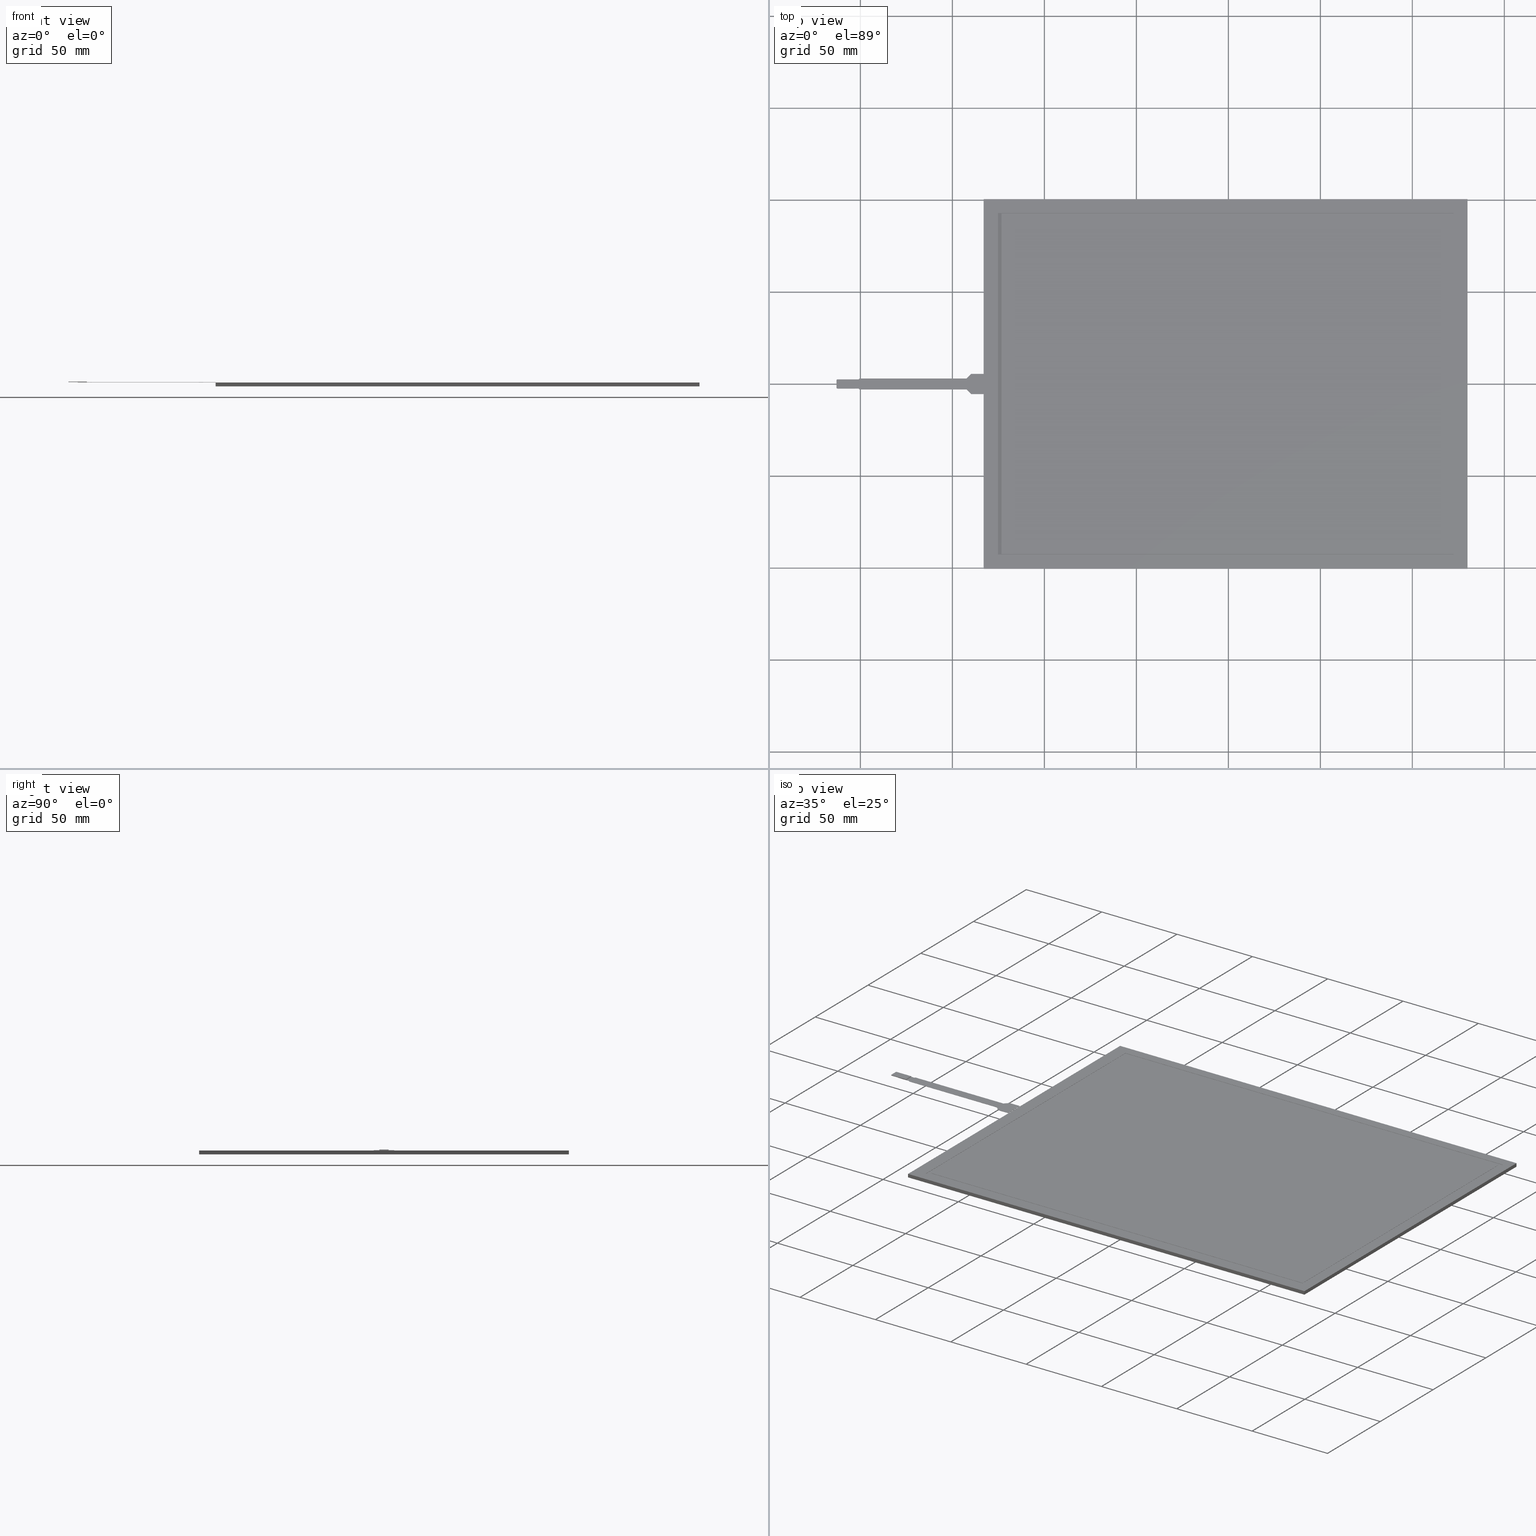
[diagram: canonical four-view strip — front | top / right | iso, engineering-drawing reading convention]
A machine part, canonical four-view strip (front | top / right | iso — engineering-drawing reading convention). The complete STEP part file that produces these views, byte-faithful:
ISO-10303-21;
HEADER;
/* Generated by software containing ST-Developer
 * from STEP Tools, Inc. (www.steptools.com) 
 */

FILE_DESCRIPTION(
/* description */ (''),
/* implementation_level */ '2;1');

FILE_NAME(
/* name */ 
'\\\\172.16.4.5\\\X2\65B06280885390E8\X0\$\\10 \X2\4E0066424FDD7BA1\X0\\\
\X2\5E737530\X0\\\\X2\2466\X0\3D\X2\30C730FC30BF\X0\\\3D\\LST-121C080C
\\LST-121C080C-1 (3D\X2\30C730FC30BF\X0\).stp',
/* time_stamp */ '2024-09-06T17:59:55+09:00',
/* author */ ('n-hirata'),
/* organization */ (''),
/* preprocessor_version */ 'ST-DEVELOPER v18.1',
/* originating_system */ 'Autodesk Inventor 2020',
/* authorisation */ '');

FILE_SCHEMA (('CONFIG_CONTROL_DESIGN'));
ENDSEC;

DATA;
#10=MECHANICAL_DESIGN_GEOMETRIC_PRESENTATION_REPRESENTATION('',(#29,#30,
#31,#32,#33,#34,#35),#1673);
#11=GEOMETRICALLY_BOUNDED_WIREFRAME_SHAPE_REPRESENTATION('',(#12),#1672);
#12=GEOMETRIC_CURVE_SET('\X2\30B930B130C330C1\X0\3',(#16,#17,#18,#19,#20,
#21,#22,#23,#24,#25,#26,#27,#28));
#13=SHAPE_REPRESENTATION_RELATIONSHIP('SRR','None',#1680,#15);
#14=SHAPE_REPRESENTATION_RELATIONSHIP('SRR','None',#1680,#11);
#15=ADVANCED_BREP_SHAPE_REPRESENTATION('',(#54,#55),#1672);
#16=POLYLINE('',(#1644,#1645));
#17=POLYLINE('',(#1646,#1647));
#18=POLYLINE('',(#1648,#1649));
#19=POLYLINE('',(#1650,#1651));
#20=POLYLINE('',(#1652,#1653));
#21=POLYLINE('',(#1654,#1655));
#22=POLYLINE('',(#1656,#1657));
#23=POLYLINE('',(#1658,#1659));
#24=POLYLINE('',(#1660,#1661));
#25=POLYLINE('',(#1662,#1663));
#26=POLYLINE('',(#1664,#1665));
#27=POLYLINE('',(#1666,#1667));
#28=POLYLINE('',(#1668,#1669));
#29=STYLED_ITEM('',(#1689),#54);
#30=STYLED_ITEM('',(#1689),#55);
#31=STYLED_ITEM('',(#1691),#20);
#32=STYLED_ITEM('',(#1691),#21);
#33=STYLED_ITEM('',(#1691),#22);
#34=STYLED_ITEM('',(#1691),#27);
#35=STYLED_ITEM('',(#1690),#28);
#36=CIRCLE('',#1058,0.5);
#37=CIRCLE('',#1059,0.5);
#38=CIRCLE('',#1062,0.3);
#39=CIRCLE('',#1063,0.3);
#40=CIRCLE('',#1064,0.3);
#41=CIRCLE('',#1065,0.3);
#42=CIRCLE('',#1066,0.5);
#43=CIRCLE('',#1068,0.5);
#44=CIRCLE('',#1071,0.3);
#45=CIRCLE('',#1076,0.3);
#46=CIRCLE('',#1081,0.3);
#47=CIRCLE('',#1087,0.3);
#48=CYLINDRICAL_SURFACE('',#1057,0.5);
#49=CYLINDRICAL_SURFACE('',#1067,0.5);
#50=CYLINDRICAL_SURFACE('',#1070,0.3);
#51=CYLINDRICAL_SURFACE('',#1075,0.3);
#52=CYLINDRICAL_SURFACE('',#1080,0.3);
#53=CYLINDRICAL_SURFACE('',#1086,0.3);
#54=MANIFOLD_SOLID_BREP('\X2\30BD30EA30C330C9\X0\1',#1020);
#55=MANIFOLD_SOLID_BREP('\X2\30BD30EA30C330C9\X0\1',#1021);
#56=FACE_BOUND('',#119,.T.);
#57=FACE_BOUND('',#121,.T.);
#58=FACE_OUTER_BOUND('',#110,.T.);
#59=FACE_OUTER_BOUND('',#111,.T.);
#60=FACE_OUTER_BOUND('',#112,.T.);
#61=FACE_OUTER_BOUND('',#113,.T.);
#62=FACE_OUTER_BOUND('',#114,.T.);
#63=FACE_OUTER_BOUND('',#115,.T.);
#64=FACE_OUTER_BOUND('',#116,.T.);
#65=FACE_OUTER_BOUND('',#117,.T.);
#66=FACE_OUTER_BOUND('',#118,.T.);
#67=FACE_OUTER_BOUND('',#120,.T.);
#68=FACE_OUTER_BOUND('',#122,.T.);
#69=FACE_OUTER_BOUND('',#123,.T.);
#70=FACE_OUTER_BOUND('',#124,.T.);
#71=FACE_OUTER_BOUND('',#125,.T.);
#72=FACE_OUTER_BOUND('',#126,.T.);
#73=FACE_OUTER_BOUND('',#127,.T.);
#74=FACE_OUTER_BOUND('',#128,.T.);
#75=FACE_OUTER_BOUND('',#129,.T.);
#76=FACE_OUTER_BOUND('',#130,.T.);
#77=FACE_OUTER_BOUND('',#131,.T.);
#78=FACE_OUTER_BOUND('',#132,.T.);
#79=FACE_OUTER_BOUND('',#133,.T.);
#80=FACE_OUTER_BOUND('',#134,.T.);
#81=FACE_OUTER_BOUND('',#135,.T.);
#82=FACE_OUTER_BOUND('',#136,.T.);
#83=FACE_OUTER_BOUND('',#137,.T.);
#84=FACE_OUTER_BOUND('',#138,.T.);
#85=FACE_OUTER_BOUND('',#139,.T.);
#86=FACE_OUTER_BOUND('',#140,.T.);
#87=FACE_OUTER_BOUND('',#141,.T.);
#88=FACE_OUTER_BOUND('',#142,.T.);
#89=FACE_OUTER_BOUND('',#143,.T.);
#90=FACE_OUTER_BOUND('',#144,.T.);
#91=FACE_OUTER_BOUND('',#145,.T.);
#92=FACE_OUTER_BOUND('',#146,.T.);
#93=FACE_OUTER_BOUND('',#147,.T.);
#94=FACE_OUTER_BOUND('',#148,.T.);
#95=FACE_OUTER_BOUND('',#149,.T.);
#96=FACE_OUTER_BOUND('',#150,.T.);
#97=FACE_OUTER_BOUND('',#151,.T.);
#98=FACE_OUTER_BOUND('',#152,.T.);
#99=FACE_OUTER_BOUND('',#153,.T.);
#100=FACE_OUTER_BOUND('',#154,.T.);
#101=FACE_OUTER_BOUND('',#155,.T.);
#102=FACE_OUTER_BOUND('',#156,.T.);
#103=FACE_OUTER_BOUND('',#157,.T.);
#104=FACE_OUTER_BOUND('',#158,.T.);
#105=FACE_OUTER_BOUND('',#159,.T.);
#106=FACE_OUTER_BOUND('',#160,.T.);
#107=FACE_OUTER_BOUND('',#161,.T.);
#108=FACE_OUTER_BOUND('',#162,.T.);
#109=FACE_OUTER_BOUND('',#163,.T.);
#110=EDGE_LOOP('',(#646,#647,#648,#649));
#111=EDGE_LOOP('',(#650,#651,#652,#653));
#112=EDGE_LOOP('',(#654,#655,#656,#657));
#113=EDGE_LOOP('',(#658,#659,#660,#661));
#114=EDGE_LOOP('',(#662,#663,#664,#665));
#115=EDGE_LOOP('',(#666,#667,#668,#669));
#116=EDGE_LOOP('',(#670,#671,#672,#673));
#117=EDGE_LOOP('',(#674,#675,#676,#677));
#118=EDGE_LOOP('',(#678,#679,#680,#681));
#119=EDGE_LOOP('',(#682,#683,#684,#685));
#120=EDGE_LOOP('',(#686,#687,#688,#689));
#121=EDGE_LOOP('',(#690,#691,#692,#693));
#122=EDGE_LOOP('',(#694,#695,#696,#697));
#123=EDGE_LOOP('',(#698,#699,#700,#701));
#124=EDGE_LOOP('',(#702,#703,#704,#705));
#125=EDGE_LOOP('',(#706,#707,#708,#709));
#126=EDGE_LOOP('',(#710,#711,#712,#713));
#127=EDGE_LOOP('',(#714,#715,#716,#717));
#128=EDGE_LOOP('',(#718,#719,#720,#721));
#129=EDGE_LOOP('',(#722,#723,#724,#725));
#130=EDGE_LOOP('',(#726,#727,#728,#729,#730,#731,#732,#733,#734,#735,#736,
#737,#738,#739,#740,#741,#742,#743,#744,#745,#746,#747));
#131=EDGE_LOOP('',(#748,#749,#750,#751));
#132=EDGE_LOOP('',(#752,#753,#754,#755,#756,#757,#758,#759));
#133=EDGE_LOOP('',(#760,#761,#762,#763));
#134=EDGE_LOOP('',(#764,#765,#766,#767));
#135=EDGE_LOOP('',(#768,#769,#770,#771));
#136=EDGE_LOOP('',(#772,#773,#774,#775));
#137=EDGE_LOOP('',(#776,#777,#778,#779));
#138=EDGE_LOOP('',(#780,#781,#782,#783));
#139=EDGE_LOOP('',(#784,#785,#786,#787));
#140=EDGE_LOOP('',(#788,#789,#790,#791));
#141=EDGE_LOOP('',(#792,#793,#794,#795));
#142=EDGE_LOOP('',(#796,#797,#798,#799));
#143=EDGE_LOOP('',(#800,#801,#802,#803));
#144=EDGE_LOOP('',(#804,#805,#806,#807));
#145=EDGE_LOOP('',(#808,#809,#810,#811,#812,#813,#814,#815,#816,#817,#818,
#819,#820,#821,#822,#823,#824,#825,#826,#827));
#146=EDGE_LOOP('',(#828,#829,#830,#831));
#147=EDGE_LOOP('',(#832,#833,#834,#835));
#148=EDGE_LOOP('',(#836,#837,#838,#839));
#149=EDGE_LOOP('',(#840,#841,#842,#843));
#150=EDGE_LOOP('',(#844,#845,#846,#847));
#151=EDGE_LOOP('',(#848,#849,#850,#851,#852,#853));
#152=EDGE_LOOP('',(#854,#855,#856,#857));
#153=EDGE_LOOP('',(#858,#859,#860,#861,#862,#863,#864,#865));
#154=EDGE_LOOP('',(#866,#867,#868,#869));
#155=EDGE_LOOP('',(#870,#871,#872,#873));
#156=EDGE_LOOP('',(#874,#875,#876,#877));
#157=EDGE_LOOP('',(#878,#879,#880,#881));
#158=EDGE_LOOP('',(#882,#883,#884,#885));
#159=EDGE_LOOP('',(#886,#887,#888,#889));
#160=EDGE_LOOP('',(#890,#891,#892,#893));
#161=EDGE_LOOP('',(#894,#895,#896,#897));
#162=EDGE_LOOP('',(#898,#899,#900,#901,#902,#903,#904,#905,#906,#907,#908,
#909));
#163=EDGE_LOOP('',(#910,#911,#912,#913,#914,#915,#916,#917,#918,#919,#920,
#921));
#164=LINE('',#1365,#290);
#165=LINE('',#1367,#291);
#166=LINE('',#1369,#292);
#167=LINE('',#1370,#293);
#168=LINE('',#1373,#294);
#169=LINE('',#1375,#295);
#170=LINE('',#1376,#296);
#171=LINE('',#1379,#297);
#172=LINE('',#1381,#298);
#173=LINE('',#1382,#299);
#174=LINE('',#1384,#300);
#175=LINE('',#1385,#301);
#176=LINE('',#1389,#302);
#177=LINE('',#1391,#303);
#178=LINE('',#1393,#304);
#179=LINE('',#1394,#305);
#180=LINE('',#1397,#306);
#181=LINE('',#1399,#307);
#182=LINE('',#1400,#308);
#183=LINE('',#1403,#309);
#184=LINE('',#1405,#310);
#185=LINE('',#1406,#311);
#186=LINE('',#1408,#312);
#187=LINE('',#1409,#313);
#188=LINE('',#1414,#314);
#189=LINE('',#1416,#315);
#190=LINE('',#1418,#316);
#191=LINE('',#1419,#317);
#192=LINE('',#1422,#318);
#193=LINE('',#1424,#319);
#194=LINE('',#1425,#320);
#195=LINE('',#1428,#321);
#196=LINE('',#1429,#322);
#197=LINE('',#1432,#323);
#198=LINE('',#1433,#324);
#199=LINE('',#1435,#325);
#200=LINE('',#1443,#326);
#201=LINE('',#1446,#327);
#202=LINE('',#1449,#328);
#203=LINE('',#1451,#329);
#204=LINE('',#1452,#330);
#205=LINE('',#1455,#331);
#206=LINE('',#1457,#332);
#207=LINE('',#1459,#333);
#208=LINE('',#1463,#334);
#209=LINE('',#1465,#335);
#210=LINE('',#1467,#336);
#211=LINE('',#1471,#337);
#212=LINE('',#1473,#338);
#213=LINE('',#1475,#339);
#214=LINE('',#1479,#340);
#215=LINE('',#1481,#341);
#216=LINE('',#1483,#342);
#217=LINE('',#1487,#343);
#218=LINE('',#1489,#344);
#219=LINE('',#1491,#345);
#220=LINE('',#1496,#346);
#221=LINE('',#1499,#347);
#222=LINE('',#1501,#348);
#223=LINE('',#1503,#349);
#224=LINE('',#1505,#350);
#225=LINE('',#1507,#351);
#226=LINE('',#1508,#352);
#227=LINE('',#1511,#353);
#228=LINE('',#1514,#354);
#229=LINE('',#1517,#355);
#230=LINE('',#1518,#356);
#231=LINE('',#1521,#357);
#232=LINE('',#1522,#358);
#233=LINE('',#1524,#359);
#234=LINE('',#1527,#360);
#235=LINE('',#1530,#361);
#236=LINE('',#1533,#362);
#237=LINE('',#1534,#363);
#238=LINE('',#1537,#364);
#239=LINE('',#1538,#365);
#240=LINE('',#1540,#366);
#241=LINE('',#1543,#367);
#242=LINE('',#1546,#368);
#243=LINE('',#1549,#369);
#244=LINE('',#1550,#370);
#245=LINE('',#1553,#371);
#246=LINE('',#1554,#372);
#247=LINE('',#1556,#373);
#248=LINE('',#1559,#374);
#249=LINE('',#1561,#375);
#250=LINE('',#1562,#376);
#251=LINE('',#1564,#377);
#252=LINE('',#1565,#378);
#253=LINE('',#1568,#379);
#254=LINE('',#1571,#380);
#255=LINE('',#1573,#381);
#256=LINE('',#1575,#382);
#257=LINE('',#1579,#383);
#258=LINE('',#1581,#384);
#259=LINE('',#1582,#385);
#260=LINE('',#1584,#386);
#261=LINE('',#1588,#387);
#262=LINE('',#1590,#388);
#263=LINE('',#1592,#389);
#264=LINE('',#1593,#390);
#265=LINE('',#1595,#391);
#266=LINE('',#1596,#392);
#267=LINE('',#1599,#393);
#268=LINE('',#1601,#394);
#269=LINE('',#1602,#395);
#270=LINE('',#1605,#396);
#271=LINE('',#1607,#397);
#272=LINE('',#1608,#398);
#273=LINE('',#1611,#399);
#274=LINE('',#1613,#400);
#275=LINE('',#1614,#401);
#276=LINE('',#1617,#402);
#277=LINE('',#1619,#403);
#278=LINE('',#1620,#404);
#279=LINE('',#1623,#405);
#280=LINE('',#1625,#406);
#281=LINE('',#1626,#407);
#282=LINE('',#1629,#408);
#283=LINE('',#1631,#409);
#284=LINE('',#1632,#410);
#285=LINE('',#1635,#411);
#286=LINE('',#1637,#412);
#287=LINE('',#1638,#413);
#288=LINE('',#1640,#414);
#289=LINE('',#1641,#415);
#290=VECTOR('',#1109,10.);
#291=VECTOR('',#1110,10.);
#292=VECTOR('',#1111,10.);
#293=VECTOR('',#1112,10.);
#294=VECTOR('',#1115,10.);
#295=VECTOR('',#1116,10.);
#296=VECTOR('',#1117,10.);
#297=VECTOR('',#1120,10.);
#298=VECTOR('',#1121,10.);
#299=VECTOR('',#1122,10.);
#300=VECTOR('',#1125,10.);
#301=VECTOR('',#1126,10.);
#302=VECTOR('',#1129,10.);
#303=VECTOR('',#1130,10.);
#304=VECTOR('',#1131,10.);
#305=VECTOR('',#1132,10.);
#306=VECTOR('',#1135,10.);
#307=VECTOR('',#1136,10.);
#308=VECTOR('',#1137,10.);
#309=VECTOR('',#1140,10.);
#310=VECTOR('',#1141,10.);
#311=VECTOR('',#1142,10.);
#312=VECTOR('',#1145,10.);
#313=VECTOR('',#1146,10.);
#314=VECTOR('',#1151,10.);
#315=VECTOR('',#1152,10.);
#316=VECTOR('',#1153,10.);
#317=VECTOR('',#1154,10.);
#318=VECTOR('',#1157,10.);
#319=VECTOR('',#1158,10.);
#320=VECTOR('',#1159,10.);
#321=VECTOR('',#1162,10.);
#322=VECTOR('',#1163,10.);
#323=VECTOR('',#1166,10.);
#324=VECTOR('',#1167,10.);
#325=VECTOR('',#1170,10.);
#326=VECTOR('',#1179,10.);
#327=VECTOR('',#1182,10.);
#328=VECTOR('',#1185,10.);
#329=VECTOR('',#1186,10.);
#330=VECTOR('',#1187,10.);
#331=VECTOR('',#1190,10.);
#332=VECTOR('',#1191,10.);
#333=VECTOR('',#1192,10.);
#334=VECTOR('',#1195,10.);
#335=VECTOR('',#1196,10.);
#336=VECTOR('',#1197,10.);
#337=VECTOR('',#1200,10.);
#338=VECTOR('',#1201,10.);
#339=VECTOR('',#1202,10.);
#340=VECTOR('',#1205,10.);
#341=VECTOR('',#1206,10.);
#342=VECTOR('',#1207,10.);
#343=VECTOR('',#1210,10.);
#344=VECTOR('',#1211,10.);
#345=VECTOR('',#1212,10.);
#346=VECTOR('',#1219,10.);
#347=VECTOR('',#1222,10.);
#348=VECTOR('',#1223,10.);
#349=VECTOR('',#1224,10.);
#350=VECTOR('',#1225,10.);
#351=VECTOR('',#1226,10.);
#352=VECTOR('',#1227,10.);
#353=VECTOR('',#1230,10.);
#354=VECTOR('',#1233,10.);
#355=VECTOR('',#1236,10.);
#356=VECTOR('',#1237,10.);
#357=VECTOR('',#1240,10.);
#358=VECTOR('',#1241,10.);
#359=VECTOR('',#1244,10.);
#360=VECTOR('',#1247,10.);
#361=VECTOR('',#1250,10.);
#362=VECTOR('',#1253,10.);
#363=VECTOR('',#1254,10.);
#364=VECTOR('',#1257,10.);
#365=VECTOR('',#1258,10.);
#366=VECTOR('',#1261,10.);
#367=VECTOR('',#1264,10.);
#368=VECTOR('',#1267,10.);
#369=VECTOR('',#1270,10.);
#370=VECTOR('',#1271,10.);
#371=VECTOR('',#1274,10.);
#372=VECTOR('',#1275,10.);
#373=VECTOR('',#1278,10.);
#374=VECTOR('',#1281,10.);
#375=VECTOR('',#1282,10.);
#376=VECTOR('',#1283,10.);
#377=VECTOR('',#1284,10.);
#378=VECTOR('',#1285,10.);
#379=VECTOR('',#1288,10.);
#380=VECTOR('',#1291,10.);
#381=VECTOR('',#1294,10.);
#382=VECTOR('',#1297,10.);
#383=VECTOR('',#1302,10.);
#384=VECTOR('',#1303,10.);
#385=VECTOR('',#1304,10.);
#386=VECTOR('',#1307,10.);
#387=VECTOR('',#1310,10.);
#388=VECTOR('',#1311,10.);
#389=VECTOR('',#1312,10.);
#390=VECTOR('',#1313,10.);
#391=VECTOR('',#1316,10.);
#392=VECTOR('',#1317,10.);
#393=VECTOR('',#1320,10.);
#394=VECTOR('',#1321,10.);
#395=VECTOR('',#1322,10.);
#396=VECTOR('',#1325,10.);
#397=VECTOR('',#1326,10.);
#398=VECTOR('',#1327,10.);
#399=VECTOR('',#1330,10.);
#400=VECTOR('',#1331,10.);
#401=VECTOR('',#1332,10.);
#402=VECTOR('',#1335,10.);
#403=VECTOR('',#1336,10.);
#404=VECTOR('',#1337,10.);
#405=VECTOR('',#1340,10.);
#406=VECTOR('',#1341,10.);
#407=VECTOR('',#1342,10.);
#408=VECTOR('',#1345,10.);
#409=VECTOR('',#1346,10.);
#410=VECTOR('',#1347,10.);
#411=VECTOR('',#1350,10.);
#412=VECTOR('',#1351,10.);
#413=VECTOR('',#1352,10.);
#414=VECTOR('',#1355,10.);
#415=VECTOR('',#1356,10.);
#416=VERTEX_POINT('',#1363);
#417=VERTEX_POINT('',#1364);
#418=VERTEX_POINT('',#1366);
#419=VERTEX_POINT('',#1368);
#420=VERTEX_POINT('',#1372);
#421=VERTEX_POINT('',#1374);
#422=VERTEX_POINT('',#1378);
#423=VERTEX_POINT('',#1380);
#424=VERTEX_POINT('',#1387);
#425=VERTEX_POINT('',#1388);
#426=VERTEX_POINT('',#1390);
#427=VERTEX_POINT('',#1392);
#428=VERTEX_POINT('',#1396);
#429=VERTEX_POINT('',#1398);
#430=VERTEX_POINT('',#1402);
#431=VERTEX_POINT('',#1404);
#432=VERTEX_POINT('',#1412);
#433=VERTEX_POINT('',#1413);
#434=VERTEX_POINT('',#1415);
#435=VERTEX_POINT('',#1417);
#436=VERTEX_POINT('',#1421);
#437=VERTEX_POINT('',#1423);
#438=VERTEX_POINT('',#1427);
#439=VERTEX_POINT('',#1431);
#440=VERTEX_POINT('',#1439);
#441=VERTEX_POINT('',#1440);
#442=VERTEX_POINT('',#1442);
#443=VERTEX_POINT('',#1444);
#444=VERTEX_POINT('',#1448);
#445=VERTEX_POINT('',#1450);
#446=VERTEX_POINT('',#1454);
#447=VERTEX_POINT('',#1456);
#448=VERTEX_POINT('',#1458);
#449=VERTEX_POINT('',#1460);
#450=VERTEX_POINT('',#1462);
#451=VERTEX_POINT('',#1464);
#452=VERTEX_POINT('',#1466);
#453=VERTEX_POINT('',#1468);
#454=VERTEX_POINT('',#1470);
#455=VERTEX_POINT('',#1472);
#456=VERTEX_POINT('',#1474);
#457=VERTEX_POINT('',#1476);
#458=VERTEX_POINT('',#1478);
#459=VERTEX_POINT('',#1480);
#460=VERTEX_POINT('',#1482);
#461=VERTEX_POINT('',#1484);
#462=VERTEX_POINT('',#1486);
#463=VERTEX_POINT('',#1488);
#464=VERTEX_POINT('',#1490);
#465=VERTEX_POINT('',#1494);
#466=VERTEX_POINT('',#1498);
#467=VERTEX_POINT('',#1500);
#468=VERTEX_POINT('',#1502);
#469=VERTEX_POINT('',#1504);
#470=VERTEX_POINT('',#1506);
#471=VERTEX_POINT('',#1510);
#472=VERTEX_POINT('',#1512);
#473=VERTEX_POINT('',#1516);
#474=VERTEX_POINT('',#1520);
#475=VERTEX_POINT('',#1526);
#476=VERTEX_POINT('',#1528);
#477=VERTEX_POINT('',#1532);
#478=VERTEX_POINT('',#1536);
#479=VERTEX_POINT('',#1542);
#480=VERTEX_POINT('',#1544);
#481=VERTEX_POINT('',#1548);
#482=VERTEX_POINT('',#1552);
#483=VERTEX_POINT('',#1558);
#484=VERTEX_POINT('',#1560);
#485=VERTEX_POINT('',#1563);
#486=VERTEX_POINT('',#1567);
#487=VERTEX_POINT('',#1569);
#488=VERTEX_POINT('',#1578);
#489=VERTEX_POINT('',#1580);
#490=VERTEX_POINT('',#1586);
#491=VERTEX_POINT('',#1587);
#492=VERTEX_POINT('',#1589);
#493=VERTEX_POINT('',#1591);
#494=VERTEX_POINT('',#1598);
#495=VERTEX_POINT('',#1600);
#496=VERTEX_POINT('',#1604);
#497=VERTEX_POINT('',#1606);
#498=VERTEX_POINT('',#1610);
#499=VERTEX_POINT('',#1612);
#500=VERTEX_POINT('',#1616);
#501=VERTEX_POINT('',#1618);
#502=VERTEX_POINT('',#1622);
#503=VERTEX_POINT('',#1624);
#504=VERTEX_POINT('',#1628);
#505=VERTEX_POINT('',#1630);
#506=VERTEX_POINT('',#1634);
#507=VERTEX_POINT('',#1636);
#508=EDGE_CURVE('',#416,#417,#164,.T.);
#509=EDGE_CURVE('',#416,#418,#165,.T.);
#510=EDGE_CURVE('',#418,#419,#166,.T.);
#511=EDGE_CURVE('',#417,#419,#167,.T.);
#512=EDGE_CURVE('',#420,#416,#168,.T.);
#513=EDGE_CURVE('',#420,#421,#169,.T.);
#514=EDGE_CURVE('',#421,#418,#170,.T.);
#515=EDGE_CURVE('',#422,#420,#171,.T.);
#516=EDGE_CURVE('',#422,#423,#172,.T.);
#517=EDGE_CURVE('',#423,#421,#173,.T.);
#518=EDGE_CURVE('',#417,#422,#174,.T.);
#519=EDGE_CURVE('',#419,#423,#175,.T.);
#520=EDGE_CURVE('',#424,#425,#176,.T.);
#521=EDGE_CURVE('',#424,#426,#177,.T.);
#522=EDGE_CURVE('',#426,#427,#178,.T.);
#523=EDGE_CURVE('',#425,#427,#179,.T.);
#524=EDGE_CURVE('',#428,#424,#180,.T.);
#525=EDGE_CURVE('',#428,#429,#181,.T.);
#526=EDGE_CURVE('',#429,#426,#182,.T.);
#527=EDGE_CURVE('',#430,#428,#183,.T.);
#528=EDGE_CURVE('',#430,#431,#184,.T.);
#529=EDGE_CURVE('',#431,#429,#185,.T.);
#530=EDGE_CURVE('',#425,#430,#186,.T.);
#531=EDGE_CURVE('',#427,#431,#187,.T.);
#532=EDGE_CURVE('',#432,#433,#188,.T.);
#533=EDGE_CURVE('',#433,#434,#189,.T.);
#534=EDGE_CURVE('',#434,#435,#190,.T.);
#535=EDGE_CURVE('',#435,#432,#191,.T.);
#536=EDGE_CURVE('',#433,#436,#192,.T.);
#537=EDGE_CURVE('',#437,#436,#193,.T.);
#538=EDGE_CURVE('',#434,#437,#194,.T.);
#539=EDGE_CURVE('',#438,#437,#195,.T.);
#540=EDGE_CURVE('',#435,#438,#196,.T.);
#541=EDGE_CURVE('',#439,#438,#197,.T.);
#542=EDGE_CURVE('',#432,#439,#198,.T.);
#543=EDGE_CURVE('',#436,#439,#199,.T.);
#544=EDGE_CURVE('',#440,#441,#36,.T.);
#545=EDGE_CURVE('',#441,#442,#200,.T.);
#546=EDGE_CURVE('',#442,#443,#37,.T.);
#547=EDGE_CURVE('',#443,#440,#201,.T.);
#548=EDGE_CURVE('',#443,#444,#202,.T.);
#549=EDGE_CURVE('',#445,#444,#203,.T.);
#550=EDGE_CURVE('',#440,#445,#204,.T.);
#551=EDGE_CURVE('',#446,#442,#205,.T.);
#552=EDGE_CURVE('',#447,#446,#206,.T.);
#553=EDGE_CURVE('',#447,#448,#207,.T.);
#554=EDGE_CURVE('',#448,#449,#38,.T.);
#555=EDGE_CURVE('',#449,#450,#208,.T.);
#556=EDGE_CURVE('',#451,#450,#209,.T.);
#557=EDGE_CURVE('',#451,#452,#210,.T.);
#558=EDGE_CURVE('',#452,#453,#39,.T.);
#559=EDGE_CURVE('',#453,#454,#211,.T.);
#560=EDGE_CURVE('',#455,#454,#212,.T.);
#561=EDGE_CURVE('',#455,#456,#213,.T.);
#562=EDGE_CURVE('',#456,#457,#40,.T.);
#563=EDGE_CURVE('',#457,#458,#214,.T.);
#564=EDGE_CURVE('',#459,#458,#215,.T.);
#565=EDGE_CURVE('',#459,#460,#216,.T.);
#566=EDGE_CURVE('',#460,#461,#41,.T.);
#567=EDGE_CURVE('',#461,#462,#217,.T.);
#568=EDGE_CURVE('',#463,#462,#218,.T.);
#569=EDGE_CURVE('',#464,#463,#219,.T.);
#570=EDGE_CURVE('',#444,#464,#42,.T.);
#571=EDGE_CURVE('',#465,#445,#43,.T.);
#572=EDGE_CURVE('',#464,#465,#220,.T.);
#573=EDGE_CURVE('',#463,#466,#221,.T.);
#574=EDGE_CURVE('',#467,#466,#222,.T.);
#575=EDGE_CURVE('',#468,#467,#223,.T.);
#576=EDGE_CURVE('',#469,#468,#224,.T.);
#577=EDGE_CURVE('',#469,#470,#225,.T.);
#578=EDGE_CURVE('',#465,#470,#226,.T.);
#579=EDGE_CURVE('',#460,#471,#227,.T.);
#580=EDGE_CURVE('',#472,#471,#44,.T.);
#581=EDGE_CURVE('',#461,#472,#228,.T.);
#582=EDGE_CURVE('',#473,#472,#229,.T.);
#583=EDGE_CURVE('',#462,#473,#230,.T.);
#584=EDGE_CURVE('',#474,#459,#231,.T.);
#585=EDGE_CURVE('',#471,#474,#232,.T.);
#586=EDGE_CURVE('',#473,#474,#233,.T.);
#587=EDGE_CURVE('',#456,#475,#234,.T.);
#588=EDGE_CURVE('',#476,#475,#45,.T.);
#589=EDGE_CURVE('',#457,#476,#235,.T.);
#590=EDGE_CURVE('',#477,#476,#236,.T.);
#591=EDGE_CURVE('',#458,#477,#237,.T.);
#592=EDGE_CURVE('',#478,#455,#238,.T.);
#593=EDGE_CURVE('',#475,#478,#239,.T.);
#594=EDGE_CURVE('',#477,#478,#240,.T.);
#595=EDGE_CURVE('',#452,#479,#241,.T.);
#596=EDGE_CURVE('',#480,#479,#46,.T.);
#597=EDGE_CURVE('',#453,#480,#242,.T.);
#598=EDGE_CURVE('',#481,#480,#243,.T.);
#599=EDGE_CURVE('',#454,#481,#244,.T.);
#600=EDGE_CURVE('',#482,#451,#245,.T.);
#601=EDGE_CURVE('',#479,#482,#246,.T.);
#602=EDGE_CURVE('',#481,#482,#247,.T.);
#603=EDGE_CURVE('',#450,#483,#248,.T.);
#604=EDGE_CURVE('',#483,#484,#249,.T.);
#605=EDGE_CURVE('',#484,#447,#250,.T.);
#606=EDGE_CURVE('',#485,#446,#251,.T.);
#607=EDGE_CURVE('',#466,#485,#252,.T.);
#608=EDGE_CURVE('',#448,#486,#253,.T.);
#609=EDGE_CURVE('',#487,#486,#47,.T.);
#610=EDGE_CURVE('',#449,#487,#254,.T.);
#611=EDGE_CURVE('',#483,#487,#255,.T.);
#612=EDGE_CURVE('',#486,#484,#256,.T.);
#613=EDGE_CURVE('',#488,#469,#257,.T.);
#614=EDGE_CURVE('',#488,#489,#258,.T.);
#615=EDGE_CURVE('',#470,#489,#259,.T.);
#616=EDGE_CURVE('',#489,#441,#260,.T.);
#617=EDGE_CURVE('',#490,#491,#261,.T.);
#618=EDGE_CURVE('',#490,#492,#262,.T.);
#619=EDGE_CURVE('',#493,#492,#263,.T.);
#620=EDGE_CURVE('',#491,#493,#264,.T.);
#621=EDGE_CURVE('',#491,#488,#265,.T.);
#622=EDGE_CURVE('',#485,#493,#266,.T.);
#623=EDGE_CURVE('',#468,#494,#267,.T.);
#624=EDGE_CURVE('',#495,#467,#268,.T.);
#625=EDGE_CURVE('',#494,#495,#269,.T.);
#626=EDGE_CURVE('',#494,#496,#270,.T.);
#627=EDGE_CURVE('',#497,#495,#271,.T.);
#628=EDGE_CURVE('',#496,#497,#272,.T.);
#629=EDGE_CURVE('',#496,#498,#273,.T.);
#630=EDGE_CURVE('',#499,#497,#274,.T.);
#631=EDGE_CURVE('',#498,#499,#275,.T.);
#632=EDGE_CURVE('',#498,#500,#276,.T.);
#633=EDGE_CURVE('',#501,#499,#277,.T.);
#634=EDGE_CURVE('',#500,#501,#278,.T.);
#635=EDGE_CURVE('',#500,#502,#279,.T.);
#636=EDGE_CURVE('',#503,#501,#280,.T.);
#637=EDGE_CURVE('',#502,#503,#281,.T.);
#638=EDGE_CURVE('',#502,#504,#282,.T.);
#639=EDGE_CURVE('',#505,#503,#283,.T.);
#640=EDGE_CURVE('',#504,#505,#284,.T.);
#641=EDGE_CURVE('',#504,#506,#285,.T.);
#642=EDGE_CURVE('',#507,#505,#286,.T.);
#643=EDGE_CURVE('',#506,#507,#287,.T.);
#644=EDGE_CURVE('',#506,#490,#288,.T.);
#645=EDGE_CURVE('',#492,#507,#289,.T.);
#646=ORIENTED_EDGE('',*,*,#508,.F.);
#647=ORIENTED_EDGE('',*,*,#509,.T.);
#648=ORIENTED_EDGE('',*,*,#510,.T.);
#649=ORIENTED_EDGE('',*,*,#511,.F.);
#650=ORIENTED_EDGE('',*,*,#512,.F.);
#651=ORIENTED_EDGE('',*,*,#513,.T.);
#652=ORIENTED_EDGE('',*,*,#514,.T.);
#653=ORIENTED_EDGE('',*,*,#509,.F.);
#654=ORIENTED_EDGE('',*,*,#515,.F.);
#655=ORIENTED_EDGE('',*,*,#516,.T.);
#656=ORIENTED_EDGE('',*,*,#517,.T.);
#657=ORIENTED_EDGE('',*,*,#513,.F.);
#658=ORIENTED_EDGE('',*,*,#518,.F.);
#659=ORIENTED_EDGE('',*,*,#511,.T.);
#660=ORIENTED_EDGE('',*,*,#519,.T.);
#661=ORIENTED_EDGE('',*,*,#516,.F.);
#662=ORIENTED_EDGE('',*,*,#520,.F.);
#663=ORIENTED_EDGE('',*,*,#521,.T.);
#664=ORIENTED_EDGE('',*,*,#522,.T.);
#665=ORIENTED_EDGE('',*,*,#523,.F.);
#666=ORIENTED_EDGE('',*,*,#524,.F.);
#667=ORIENTED_EDGE('',*,*,#525,.T.);
#668=ORIENTED_EDGE('',*,*,#526,.T.);
#669=ORIENTED_EDGE('',*,*,#521,.F.);
#670=ORIENTED_EDGE('',*,*,#527,.F.);
#671=ORIENTED_EDGE('',*,*,#528,.T.);
#672=ORIENTED_EDGE('',*,*,#529,.T.);
#673=ORIENTED_EDGE('',*,*,#525,.F.);
#674=ORIENTED_EDGE('',*,*,#530,.F.);
#675=ORIENTED_EDGE('',*,*,#523,.T.);
#676=ORIENTED_EDGE('',*,*,#531,.T.);
#677=ORIENTED_EDGE('',*,*,#528,.F.);
#678=ORIENTED_EDGE('',*,*,#531,.F.);
#679=ORIENTED_EDGE('',*,*,#522,.F.);
#680=ORIENTED_EDGE('',*,*,#526,.F.);
#681=ORIENTED_EDGE('',*,*,#529,.F.);
#682=ORIENTED_EDGE('',*,*,#519,.F.);
#683=ORIENTED_EDGE('',*,*,#510,.F.);
#684=ORIENTED_EDGE('',*,*,#514,.F.);
#685=ORIENTED_EDGE('',*,*,#517,.F.);
#686=ORIENTED_EDGE('',*,*,#532,.T.);
#687=ORIENTED_EDGE('',*,*,#533,.T.);
#688=ORIENTED_EDGE('',*,*,#534,.T.);
#689=ORIENTED_EDGE('',*,*,#535,.T.);
#690=ORIENTED_EDGE('',*,*,#520,.T.);
#691=ORIENTED_EDGE('',*,*,#530,.T.);
#692=ORIENTED_EDGE('',*,*,#527,.T.);
#693=ORIENTED_EDGE('',*,*,#524,.T.);
#694=ORIENTED_EDGE('',*,*,#533,.F.);
#695=ORIENTED_EDGE('',*,*,#536,.T.);
#696=ORIENTED_EDGE('',*,*,#537,.F.);
#697=ORIENTED_EDGE('',*,*,#538,.F.);
#698=ORIENTED_EDGE('',*,*,#534,.F.);
#699=ORIENTED_EDGE('',*,*,#538,.T.);
#700=ORIENTED_EDGE('',*,*,#539,.F.);
#701=ORIENTED_EDGE('',*,*,#540,.F.);
#702=ORIENTED_EDGE('',*,*,#535,.F.);
#703=ORIENTED_EDGE('',*,*,#540,.T.);
#704=ORIENTED_EDGE('',*,*,#541,.F.);
#705=ORIENTED_EDGE('',*,*,#542,.F.);
#706=ORIENTED_EDGE('',*,*,#532,.F.);
#707=ORIENTED_EDGE('',*,*,#542,.T.);
#708=ORIENTED_EDGE('',*,*,#543,.F.);
#709=ORIENTED_EDGE('',*,*,#536,.F.);
#710=ORIENTED_EDGE('',*,*,#508,.T.);
#711=ORIENTED_EDGE('',*,*,#518,.T.);
#712=ORIENTED_EDGE('',*,*,#515,.T.);
#713=ORIENTED_EDGE('',*,*,#512,.T.);
#714=ORIENTED_EDGE('',*,*,#543,.T.);
#715=ORIENTED_EDGE('',*,*,#541,.T.);
#716=ORIENTED_EDGE('',*,*,#539,.T.);
#717=ORIENTED_EDGE('',*,*,#537,.T.);
#718=ORIENTED_EDGE('',*,*,#544,.T.);
#719=ORIENTED_EDGE('',*,*,#545,.T.);
#720=ORIENTED_EDGE('',*,*,#546,.T.);
#721=ORIENTED_EDGE('',*,*,#547,.T.);
#722=ORIENTED_EDGE('',*,*,#547,.F.);
#723=ORIENTED_EDGE('',*,*,#548,.T.);
#724=ORIENTED_EDGE('',*,*,#549,.F.);
#725=ORIENTED_EDGE('',*,*,#550,.F.);
#726=ORIENTED_EDGE('',*,*,#546,.F.);
#727=ORIENTED_EDGE('',*,*,#551,.F.);
#728=ORIENTED_EDGE('',*,*,#552,.F.);
#729=ORIENTED_EDGE('',*,*,#553,.T.);
#730=ORIENTED_EDGE('',*,*,#554,.T.);
#731=ORIENTED_EDGE('',*,*,#555,.T.);
#732=ORIENTED_EDGE('',*,*,#556,.F.);
#733=ORIENTED_EDGE('',*,*,#557,.T.);
#734=ORIENTED_EDGE('',*,*,#558,.T.);
#735=ORIENTED_EDGE('',*,*,#559,.T.);
#736=ORIENTED_EDGE('',*,*,#560,.F.);
#737=ORIENTED_EDGE('',*,*,#561,.T.);
#738=ORIENTED_EDGE('',*,*,#562,.T.);
#739=ORIENTED_EDGE('',*,*,#563,.T.);
#740=ORIENTED_EDGE('',*,*,#564,.F.);
#741=ORIENTED_EDGE('',*,*,#565,.T.);
#742=ORIENTED_EDGE('',*,*,#566,.T.);
#743=ORIENTED_EDGE('',*,*,#567,.T.);
#744=ORIENTED_EDGE('',*,*,#568,.F.);
#745=ORIENTED_EDGE('',*,*,#569,.F.);
#746=ORIENTED_EDGE('',*,*,#570,.F.);
#747=ORIENTED_EDGE('',*,*,#548,.F.);
#748=ORIENTED_EDGE('',*,*,#571,.T.);
#749=ORIENTED_EDGE('',*,*,#549,.T.);
#750=ORIENTED_EDGE('',*,*,#570,.T.);
#751=ORIENTED_EDGE('',*,*,#572,.T.);
#752=ORIENTED_EDGE('',*,*,#572,.F.);
#753=ORIENTED_EDGE('',*,*,#569,.T.);
#754=ORIENTED_EDGE('',*,*,#573,.T.);
#755=ORIENTED_EDGE('',*,*,#574,.F.);
#756=ORIENTED_EDGE('',*,*,#575,.F.);
#757=ORIENTED_EDGE('',*,*,#576,.F.);
#758=ORIENTED_EDGE('',*,*,#577,.T.);
#759=ORIENTED_EDGE('',*,*,#578,.F.);
#760=ORIENTED_EDGE('',*,*,#566,.F.);
#761=ORIENTED_EDGE('',*,*,#579,.T.);
#762=ORIENTED_EDGE('',*,*,#580,.F.);
#763=ORIENTED_EDGE('',*,*,#581,.F.);
#764=ORIENTED_EDGE('',*,*,#567,.F.);
#765=ORIENTED_EDGE('',*,*,#581,.T.);
#766=ORIENTED_EDGE('',*,*,#582,.F.);
#767=ORIENTED_EDGE('',*,*,#583,.F.);
#768=ORIENTED_EDGE('',*,*,#565,.F.);
#769=ORIENTED_EDGE('',*,*,#584,.F.);
#770=ORIENTED_EDGE('',*,*,#585,.F.);
#771=ORIENTED_EDGE('',*,*,#579,.F.);
#772=ORIENTED_EDGE('',*,*,#585,.T.);
#773=ORIENTED_EDGE('',*,*,#586,.F.);
#774=ORIENTED_EDGE('',*,*,#582,.T.);
#775=ORIENTED_EDGE('',*,*,#580,.T.);
#776=ORIENTED_EDGE('',*,*,#562,.F.);
#777=ORIENTED_EDGE('',*,*,#587,.T.);
#778=ORIENTED_EDGE('',*,*,#588,.F.);
#779=ORIENTED_EDGE('',*,*,#589,.F.);
#780=ORIENTED_EDGE('',*,*,#563,.F.);
#781=ORIENTED_EDGE('',*,*,#589,.T.);
#782=ORIENTED_EDGE('',*,*,#590,.F.);
#783=ORIENTED_EDGE('',*,*,#591,.F.);
#784=ORIENTED_EDGE('',*,*,#561,.F.);
#785=ORIENTED_EDGE('',*,*,#592,.F.);
#786=ORIENTED_EDGE('',*,*,#593,.F.);
#787=ORIENTED_EDGE('',*,*,#587,.F.);
#788=ORIENTED_EDGE('',*,*,#593,.T.);
#789=ORIENTED_EDGE('',*,*,#594,.F.);
#790=ORIENTED_EDGE('',*,*,#590,.T.);
#791=ORIENTED_EDGE('',*,*,#588,.T.);
#792=ORIENTED_EDGE('',*,*,#558,.F.);
#793=ORIENTED_EDGE('',*,*,#595,.T.);
#794=ORIENTED_EDGE('',*,*,#596,.F.);
#795=ORIENTED_EDGE('',*,*,#597,.F.);
#796=ORIENTED_EDGE('',*,*,#559,.F.);
#797=ORIENTED_EDGE('',*,*,#597,.T.);
#798=ORIENTED_EDGE('',*,*,#598,.F.);
#799=ORIENTED_EDGE('',*,*,#599,.F.);
#800=ORIENTED_EDGE('',*,*,#557,.F.);
#801=ORIENTED_EDGE('',*,*,#600,.F.);
#802=ORIENTED_EDGE('',*,*,#601,.F.);
#803=ORIENTED_EDGE('',*,*,#595,.F.);
#804=ORIENTED_EDGE('',*,*,#601,.T.);
#805=ORIENTED_EDGE('',*,*,#602,.F.);
#806=ORIENTED_EDGE('',*,*,#598,.T.);
#807=ORIENTED_EDGE('',*,*,#596,.T.);
#808=ORIENTED_EDGE('',*,*,#583,.T.);
#809=ORIENTED_EDGE('',*,*,#586,.T.);
#810=ORIENTED_EDGE('',*,*,#584,.T.);
#811=ORIENTED_EDGE('',*,*,#564,.T.);
#812=ORIENTED_EDGE('',*,*,#591,.T.);
#813=ORIENTED_EDGE('',*,*,#594,.T.);
#814=ORIENTED_EDGE('',*,*,#592,.T.);
#815=ORIENTED_EDGE('',*,*,#560,.T.);
#816=ORIENTED_EDGE('',*,*,#599,.T.);
#817=ORIENTED_EDGE('',*,*,#602,.T.);
#818=ORIENTED_EDGE('',*,*,#600,.T.);
#819=ORIENTED_EDGE('',*,*,#556,.T.);
#820=ORIENTED_EDGE('',*,*,#603,.T.);
#821=ORIENTED_EDGE('',*,*,#604,.T.);
#822=ORIENTED_EDGE('',*,*,#605,.T.);
#823=ORIENTED_EDGE('',*,*,#552,.T.);
#824=ORIENTED_EDGE('',*,*,#606,.F.);
#825=ORIENTED_EDGE('',*,*,#607,.F.);
#826=ORIENTED_EDGE('',*,*,#573,.F.);
#827=ORIENTED_EDGE('',*,*,#568,.T.);
#828=ORIENTED_EDGE('',*,*,#554,.F.);
#829=ORIENTED_EDGE('',*,*,#608,.T.);
#830=ORIENTED_EDGE('',*,*,#609,.F.);
#831=ORIENTED_EDGE('',*,*,#610,.F.);
#832=ORIENTED_EDGE('',*,*,#555,.F.);
#833=ORIENTED_EDGE('',*,*,#610,.T.);
#834=ORIENTED_EDGE('',*,*,#611,.F.);
#835=ORIENTED_EDGE('',*,*,#603,.F.);
#836=ORIENTED_EDGE('',*,*,#553,.F.);
#837=ORIENTED_EDGE('',*,*,#605,.F.);
#838=ORIENTED_EDGE('',*,*,#612,.F.);
#839=ORIENTED_EDGE('',*,*,#608,.F.);
#840=ORIENTED_EDGE('',*,*,#612,.T.);
#841=ORIENTED_EDGE('',*,*,#604,.F.);
#842=ORIENTED_EDGE('',*,*,#611,.T.);
#843=ORIENTED_EDGE('',*,*,#609,.T.);
#844=ORIENTED_EDGE('',*,*,#613,.F.);
#845=ORIENTED_EDGE('',*,*,#614,.T.);
#846=ORIENTED_EDGE('',*,*,#615,.F.);
#847=ORIENTED_EDGE('',*,*,#577,.F.);
#848=ORIENTED_EDGE('',*,*,#544,.F.);
#849=ORIENTED_EDGE('',*,*,#550,.T.);
#850=ORIENTED_EDGE('',*,*,#571,.F.);
#851=ORIENTED_EDGE('',*,*,#578,.T.);
#852=ORIENTED_EDGE('',*,*,#615,.T.);
#853=ORIENTED_EDGE('',*,*,#616,.T.);
#854=ORIENTED_EDGE('',*,*,#617,.F.);
#855=ORIENTED_EDGE('',*,*,#618,.T.);
#856=ORIENTED_EDGE('',*,*,#619,.F.);
#857=ORIENTED_EDGE('',*,*,#620,.F.);
#858=ORIENTED_EDGE('',*,*,#545,.F.);
#859=ORIENTED_EDGE('',*,*,#616,.F.);
#860=ORIENTED_EDGE('',*,*,#614,.F.);
#861=ORIENTED_EDGE('',*,*,#621,.F.);
#862=ORIENTED_EDGE('',*,*,#620,.T.);
#863=ORIENTED_EDGE('',*,*,#622,.F.);
#864=ORIENTED_EDGE('',*,*,#606,.T.);
#865=ORIENTED_EDGE('',*,*,#551,.T.);
#866=ORIENTED_EDGE('',*,*,#623,.F.);
#867=ORIENTED_EDGE('',*,*,#575,.T.);
#868=ORIENTED_EDGE('',*,*,#624,.F.);
#869=ORIENTED_EDGE('',*,*,#625,.F.);
#870=ORIENTED_EDGE('',*,*,#626,.F.);
#871=ORIENTED_EDGE('',*,*,#625,.T.);
#872=ORIENTED_EDGE('',*,*,#627,.F.);
#873=ORIENTED_EDGE('',*,*,#628,.F.);
#874=ORIENTED_EDGE('',*,*,#629,.F.);
#875=ORIENTED_EDGE('',*,*,#628,.T.);
#876=ORIENTED_EDGE('',*,*,#630,.F.);
#877=ORIENTED_EDGE('',*,*,#631,.F.);
#878=ORIENTED_EDGE('',*,*,#632,.F.);
#879=ORIENTED_EDGE('',*,*,#631,.T.);
#880=ORIENTED_EDGE('',*,*,#633,.F.);
#881=ORIENTED_EDGE('',*,*,#634,.F.);
#882=ORIENTED_EDGE('',*,*,#635,.F.);
#883=ORIENTED_EDGE('',*,*,#634,.T.);
#884=ORIENTED_EDGE('',*,*,#636,.F.);
#885=ORIENTED_EDGE('',*,*,#637,.F.);
#886=ORIENTED_EDGE('',*,*,#638,.F.);
#887=ORIENTED_EDGE('',*,*,#637,.T.);
#888=ORIENTED_EDGE('',*,*,#639,.F.);
#889=ORIENTED_EDGE('',*,*,#640,.F.);
#890=ORIENTED_EDGE('',*,*,#641,.F.);
#891=ORIENTED_EDGE('',*,*,#640,.T.);
#892=ORIENTED_EDGE('',*,*,#642,.F.);
#893=ORIENTED_EDGE('',*,*,#643,.F.);
#894=ORIENTED_EDGE('',*,*,#644,.F.);
#895=ORIENTED_EDGE('',*,*,#643,.T.);
#896=ORIENTED_EDGE('',*,*,#645,.F.);
#897=ORIENTED_EDGE('',*,*,#618,.F.);
#898=ORIENTED_EDGE('',*,*,#613,.T.);
#899=ORIENTED_EDGE('',*,*,#576,.T.);
#900=ORIENTED_EDGE('',*,*,#623,.T.);
#901=ORIENTED_EDGE('',*,*,#626,.T.);
#902=ORIENTED_EDGE('',*,*,#629,.T.);
#903=ORIENTED_EDGE('',*,*,#632,.T.);
#904=ORIENTED_EDGE('',*,*,#635,.T.);
#905=ORIENTED_EDGE('',*,*,#638,.T.);
#906=ORIENTED_EDGE('',*,*,#641,.T.);
#907=ORIENTED_EDGE('',*,*,#644,.T.);
#908=ORIENTED_EDGE('',*,*,#617,.T.);
#909=ORIENTED_EDGE('',*,*,#621,.T.);
#910=ORIENTED_EDGE('',*,*,#607,.T.);
#911=ORIENTED_EDGE('',*,*,#622,.T.);
#912=ORIENTED_EDGE('',*,*,#619,.T.);
#913=ORIENTED_EDGE('',*,*,#645,.T.);
#914=ORIENTED_EDGE('',*,*,#642,.T.);
#915=ORIENTED_EDGE('',*,*,#639,.T.);
#916=ORIENTED_EDGE('',*,*,#636,.T.);
#917=ORIENTED_EDGE('',*,*,#633,.T.);
#918=ORIENTED_EDGE('',*,*,#630,.T.);
#919=ORIENTED_EDGE('',*,*,#627,.T.);
#920=ORIENTED_EDGE('',*,*,#624,.T.);
#921=ORIENTED_EDGE('',*,*,#574,.T.);
#922=PLANE('',#1041);
#923=PLANE('',#1042);
#924=PLANE('',#1043);
#925=PLANE('',#1044);
#926=PLANE('',#1045);
#927=PLANE('',#1046);
#928=PLANE('',#1047);
#929=PLANE('',#1048);
#930=PLANE('',#1049);
#931=PLANE('',#1050);
#932=PLANE('',#1051);
#933=PLANE('',#1052);
#934=PLANE('',#1053);
#935=PLANE('',#1054);
#936=PLANE('',#1055);
#937=PLANE('',#1056);
#938=PLANE('',#1060);
#939=PLANE('',#1061);
#940=PLANE('',#1069);
#941=PLANE('',#1072);
#942=PLANE('',#1073);
#943=PLANE('',#1074);
#944=PLANE('',#1077);
#945=PLANE('',#1078);
#946=PLANE('',#1079);
#947=PLANE('',#1082);
#948=PLANE('',#1083);
#949=PLANE('',#1084);
#950=PLANE('',#1085);
#951=PLANE('',#1088);
#952=PLANE('',#1089);
#953=PLANE('',#1090);
#954=PLANE('',#1091);
#955=PLANE('',#1092);
#956=PLANE('',#1093);
#957=PLANE('',#1094);
#958=PLANE('',#1095);
#959=PLANE('',#1096);
#960=PLANE('',#1097);
#961=PLANE('',#1098);
#962=PLANE('',#1099);
#963=PLANE('',#1100);
#964=PLANE('',#1101);
#965=PLANE('',#1102);
#966=PLANE('',#1103);
#967=PLANE('',#1104);
#968=ADVANCED_FACE('',(#58),#922,.F.);
#969=ADVANCED_FACE('',(#59),#923,.F.);
#970=ADVANCED_FACE('',(#60),#924,.F.);
#971=ADVANCED_FACE('',(#61),#925,.F.);
#972=ADVANCED_FACE('',(#62),#926,.F.);
#973=ADVANCED_FACE('',(#63),#927,.F.);
#974=ADVANCED_FACE('',(#64),#928,.F.);
#975=ADVANCED_FACE('',(#65),#929,.F.);
#976=ADVANCED_FACE('',(#66,#56),#930,.F.);
#977=ADVANCED_FACE('',(#67,#57),#931,.T.);
#978=ADVANCED_FACE('',(#68),#932,.T.);
#979=ADVANCED_FACE('',(#69),#933,.T.);
#980=ADVANCED_FACE('',(#70),#934,.T.);
#981=ADVANCED_FACE('',(#71),#935,.T.);
#982=ADVANCED_FACE('',(#72),#936,.T.);
#983=ADVANCED_FACE('',(#73),#937,.T.);
#984=ADVANCED_FACE('',(#74),#48,.T.);
#985=ADVANCED_FACE('',(#75),#938,.T.);
#986=ADVANCED_FACE('',(#76),#939,.F.);
#987=ADVANCED_FACE('',(#77),#49,.T.);
#988=ADVANCED_FACE('',(#78),#940,.T.);
#989=ADVANCED_FACE('',(#79),#50,.T.);
#990=ADVANCED_FACE('',(#80),#941,.T.);
#991=ADVANCED_FACE('',(#81),#942,.T.);
#992=ADVANCED_FACE('',(#82),#943,.T.);
#993=ADVANCED_FACE('',(#83),#51,.T.);
#994=ADVANCED_FACE('',(#84),#944,.T.);
#995=ADVANCED_FACE('',(#85),#945,.T.);
#996=ADVANCED_FACE('',(#86),#946,.T.);
#997=ADVANCED_FACE('',(#87),#52,.T.);
#998=ADVANCED_FACE('',(#88),#947,.T.);
#999=ADVANCED_FACE('',(#89),#948,.T.);
#1000=ADVANCED_FACE('',(#90),#949,.T.);
#1001=ADVANCED_FACE('',(#91),#950,.F.);
#1002=ADVANCED_FACE('',(#92),#53,.T.);
#1003=ADVANCED_FACE('',(#93),#951,.T.);
#1004=ADVANCED_FACE('',(#94),#952,.T.);
#1005=ADVANCED_FACE('',(#95),#953,.T.);
#1006=ADVANCED_FACE('',(#96),#954,.T.);
#1007=ADVANCED_FACE('',(#97),#955,.T.);
#1008=ADVANCED_FACE('',(#98),#956,.T.);
#1009=ADVANCED_FACE('',(#99),#957,.T.);
#1010=ADVANCED_FACE('',(#100),#958,.T.);
#1011=ADVANCED_FACE('',(#101),#959,.T.);
#1012=ADVANCED_FACE('',(#102),#960,.T.);
#1013=ADVANCED_FACE('',(#103),#961,.T.);
#1014=ADVANCED_FACE('',(#104),#962,.T.);
#1015=ADVANCED_FACE('',(#105),#963,.T.);
#1016=ADVANCED_FACE('',(#106),#964,.T.);
#1017=ADVANCED_FACE('',(#107),#965,.T.);
#1018=ADVANCED_FACE('',(#108),#966,.T.);
#1019=ADVANCED_FACE('',(#109),#967,.T.);
#1020=CLOSED_SHELL('',(#968,#969,#970,#971,#972,#973,#974,#975,#976,#977,
#978,#979,#980,#981,#982,#983));
#1021=CLOSED_SHELL('',(#984,#985,#986,#987,#988,#989,#990,#991,#992,#993,
#994,#995,#996,#997,#998,#999,#1000,#1001,#1002,#1003,#1004,#1005,#1006,
#1007,#1008,#1009,#1010,#1011,#1012,#1013,#1014,#1015,#1016,#1017,#1018,
#1019));
#1022=DERIVED_UNIT_ELEMENT(#1024,1.);
#1023=DERIVED_UNIT_ELEMENT(#1675,3.);
#1024=(
MASS_UNIT()
NAMED_UNIT(*)
SI_UNIT($,.GRAM.)
);
#1025=DERIVED_UNIT((#1022,#1023));
#1026=MEASURE_REPRESENTATION_ITEM('density measure',
POSITIVE_RATIO_MEASURE(1.),#1025);
#1027=PROPERTY_DEFINITION_REPRESENTATION(#1032,#1029);
#1028=PROPERTY_DEFINITION_REPRESENTATION(#1033,#1030);
#1029=REPRESENTATION('material name',(#1031),#1672);
#1030=REPRESENTATION('density',(#1026),#1672);
#1031=DESCRIPTIVE_REPRESENTATION_ITEM('\X2\4E00822C\X0\','\X2\4E00822C\X0\');
#1032=PROPERTY_DEFINITION('material property','material name',#1682);
#1033=PROPERTY_DEFINITION('material property','density of part',#1682);
#1034=DATE_TIME_ROLE('creation_date');
#1035=CC_DESIGN_DATE_AND_TIME_ASSIGNMENT(#1036,#1034,(#1682));
#1036=DATE_AND_TIME(#1037,#1038);
#1037=CALENDAR_DATE(2024,6,9);
#1038=LOCAL_TIME(6,30,8.,#1039);
#1039=COORDINATED_UNIVERSAL_TIME_OFFSET(0,0,.BEHIND.);
#1040=AXIS2_PLACEMENT_3D('placement',#1361,#1105,#1106);
#1041=AXIS2_PLACEMENT_3D('',#1362,#1107,#1108);
#1042=AXIS2_PLACEMENT_3D('',#1371,#1113,#1114);
#1043=AXIS2_PLACEMENT_3D('',#1377,#1118,#1119);
#1044=AXIS2_PLACEMENT_3D('',#1383,#1123,#1124);
#1045=AXIS2_PLACEMENT_3D('',#1386,#1127,#1128);
#1046=AXIS2_PLACEMENT_3D('',#1395,#1133,#1134);
#1047=AXIS2_PLACEMENT_3D('',#1401,#1138,#1139);
#1048=AXIS2_PLACEMENT_3D('',#1407,#1143,#1144);
#1049=AXIS2_PLACEMENT_3D('',#1410,#1147,#1148);
#1050=AXIS2_PLACEMENT_3D('',#1411,#1149,#1150);
#1051=AXIS2_PLACEMENT_3D('',#1420,#1155,#1156);
#1052=AXIS2_PLACEMENT_3D('',#1426,#1160,#1161);
#1053=AXIS2_PLACEMENT_3D('',#1430,#1164,#1165);
#1054=AXIS2_PLACEMENT_3D('',#1434,#1168,#1169);
#1055=AXIS2_PLACEMENT_3D('',#1436,#1171,#1172);
#1056=AXIS2_PLACEMENT_3D('',#1437,#1173,#1174);
#1057=AXIS2_PLACEMENT_3D('',#1438,#1175,#1176);
#1058=AXIS2_PLACEMENT_3D('',#1441,#1177,#1178);
#1059=AXIS2_PLACEMENT_3D('',#1445,#1180,#1181);
#1060=AXIS2_PLACEMENT_3D('',#1447,#1183,#1184);
#1061=AXIS2_PLACEMENT_3D('',#1453,#1188,#1189);
#1062=AXIS2_PLACEMENT_3D('',#1461,#1193,#1194);
#1063=AXIS2_PLACEMENT_3D('',#1469,#1198,#1199);
#1064=AXIS2_PLACEMENT_3D('',#1477,#1203,#1204);
#1065=AXIS2_PLACEMENT_3D('',#1485,#1208,#1209);
#1066=AXIS2_PLACEMENT_3D('',#1492,#1213,#1214);
#1067=AXIS2_PLACEMENT_3D('',#1493,#1215,#1216);
#1068=AXIS2_PLACEMENT_3D('',#1495,#1217,#1218);
#1069=AXIS2_PLACEMENT_3D('',#1497,#1220,#1221);
#1070=AXIS2_PLACEMENT_3D('',#1509,#1228,#1229);
#1071=AXIS2_PLACEMENT_3D('',#1513,#1231,#1232);
#1072=AXIS2_PLACEMENT_3D('',#1515,#1234,#1235);
#1073=AXIS2_PLACEMENT_3D('',#1519,#1238,#1239);
#1074=AXIS2_PLACEMENT_3D('',#1523,#1242,#1243);
#1075=AXIS2_PLACEMENT_3D('',#1525,#1245,#1246);
#1076=AXIS2_PLACEMENT_3D('',#1529,#1248,#1249);
#1077=AXIS2_PLACEMENT_3D('',#1531,#1251,#1252);
#1078=AXIS2_PLACEMENT_3D('',#1535,#1255,#1256);
#1079=AXIS2_PLACEMENT_3D('',#1539,#1259,#1260);
#1080=AXIS2_PLACEMENT_3D('',#1541,#1262,#1263);
#1081=AXIS2_PLACEMENT_3D('',#1545,#1265,#1266);
#1082=AXIS2_PLACEMENT_3D('',#1547,#1268,#1269);
#1083=AXIS2_PLACEMENT_3D('',#1551,#1272,#1273);
#1084=AXIS2_PLACEMENT_3D('',#1555,#1276,#1277);
#1085=AXIS2_PLACEMENT_3D('',#1557,#1279,#1280);
#1086=AXIS2_PLACEMENT_3D('',#1566,#1286,#1287);
#1087=AXIS2_PLACEMENT_3D('',#1570,#1289,#1290);
#1088=AXIS2_PLACEMENT_3D('',#1572,#1292,#1293);
#1089=AXIS2_PLACEMENT_3D('',#1574,#1295,#1296);
#1090=AXIS2_PLACEMENT_3D('',#1576,#1298,#1299);
#1091=AXIS2_PLACEMENT_3D('',#1577,#1300,#1301);
#1092=AXIS2_PLACEMENT_3D('',#1583,#1305,#1306);
#1093=AXIS2_PLACEMENT_3D('',#1585,#1308,#1309);
#1094=AXIS2_PLACEMENT_3D('',#1594,#1314,#1315);
#1095=AXIS2_PLACEMENT_3D('',#1597,#1318,#1319);
#1096=AXIS2_PLACEMENT_3D('',#1603,#1323,#1324);
#1097=AXIS2_PLACEMENT_3D('',#1609,#1328,#1329);
#1098=AXIS2_PLACEMENT_3D('',#1615,#1333,#1334);
#1099=AXIS2_PLACEMENT_3D('',#1621,#1338,#1339);
#1100=AXIS2_PLACEMENT_3D('',#1627,#1343,#1344);
#1101=AXIS2_PLACEMENT_3D('',#1633,#1348,#1349);
#1102=AXIS2_PLACEMENT_3D('',#1639,#1353,#1354);
#1103=AXIS2_PLACEMENT_3D('',#1642,#1357,#1358);
#1104=AXIS2_PLACEMENT_3D('',#1643,#1359,#1360);
#1105=DIRECTION('axis',(0.,0.,1.));
#1106=DIRECTION('refdir',(1.,0.,0.));
#1107=DIRECTION('center_axis',(0.,1.,0.));
#1108=DIRECTION('ref_axis',(1.,0.,0.));
#1109=DIRECTION('',(1.,0.,0.));
#1110=DIRECTION('',(0.,0.,-1.));
#1111=DIRECTION('',(1.,0.,0.));
#1112=DIRECTION('',(0.,0.,-1.));
#1113=DIRECTION('center_axis',(1.,0.,0.));
#1114=DIRECTION('ref_axis',(0.,-1.,0.));
#1115=DIRECTION('',(0.,-1.,0.));
#1116=DIRECTION('',(0.,0.,-1.));
#1117=DIRECTION('',(0.,-1.,0.));
#1118=DIRECTION('center_axis',(0.,-1.,0.));
#1119=DIRECTION('ref_axis',(-1.,0.,0.));
#1120=DIRECTION('',(-1.,0.,0.));
#1121=DIRECTION('',(0.,0.,-1.));
#1122=DIRECTION('',(-1.,0.,0.));
#1123=DIRECTION('center_axis',(-1.,0.,0.));
#1124=DIRECTION('ref_axis',(0.,1.,0.));
#1125=DIRECTION('',(0.,1.,0.));
#1126=DIRECTION('',(0.,1.,0.));
#1127=DIRECTION('center_axis',(-1.,-2.81961403079405E-16,0.));
#1128=DIRECTION('ref_axis',(-2.81961403079405E-16,1.,0.));
#1129=DIRECTION('',(-2.81961403079405E-16,1.,0.));
#1130=DIRECTION('',(0.,0.,-1.));
#1131=DIRECTION('',(-2.81961403079405E-16,1.,0.));
#1132=DIRECTION('',(0.,0.,-1.));
#1133=DIRECTION('center_axis',(1.41824897357305E-16,-1.,0.));
#1134=DIRECTION('ref_axis',(-1.,-1.41824897357305E-16,0.));
#1135=DIRECTION('',(-1.,-1.41824897357305E-16,0.));
#1136=DIRECTION('',(0.,0.,-1.));
#1137=DIRECTION('',(-1.,-1.41824897357305E-16,0.));
#1138=DIRECTION('center_axis',(1.,9.39871343598016E-17,0.));
#1139=DIRECTION('ref_axis',(9.39871343598016E-17,-1.,0.));
#1140=DIRECTION('',(9.39871343598016E-17,-1.,0.));
#1141=DIRECTION('',(0.,0.,-1.));
#1142=DIRECTION('',(9.39871343598016E-17,-1.,0.));
#1143=DIRECTION('center_axis',(0.,1.,0.));
#1144=DIRECTION('ref_axis',(1.,0.,0.));
#1145=DIRECTION('',(1.,0.,0.));
#1146=DIRECTION('',(1.,0.,0.));
#1147=DIRECTION('center_axis',(0.,0.,-1.));
#1148=DIRECTION('ref_axis',(-1.,0.,0.));
#1149=DIRECTION('center_axis',(0.,0.,1.));
#1150=DIRECTION('ref_axis',(1.,0.,0.));
#1151=DIRECTION('',(-1.,0.,0.));
#1152=DIRECTION('',(2.65127886477649E-16,-1.,0.));
#1153=DIRECTION('',(1.,1.35084170296597E-16,0.));
#1154=DIRECTION('',(0.,1.,0.));
#1155=DIRECTION('center_axis',(-1.,-2.65127886477649E-16,0.));
#1156=DIRECTION('ref_axis',(-2.65127886477649E-16,1.,0.));
#1157=DIRECTION('',(0.,0.,-1.));
#1158=DIRECTION('',(-2.65127886477649E-16,1.,0.));
#1159=DIRECTION('',(0.,0.,-1.));
#1160=DIRECTION('center_axis',(1.35084170296597E-16,-1.,0.));
#1161=DIRECTION('ref_axis',(-1.,-1.35084170296597E-16,0.));
#1162=DIRECTION('',(-1.,-1.35084170296597E-16,0.));
#1163=DIRECTION('',(0.,0.,-1.));
#1164=DIRECTION('center_axis',(1.,0.,0.));
#1165=DIRECTION('ref_axis',(0.,-1.,0.));
#1166=DIRECTION('',(0.,-1.,0.));
#1167=DIRECTION('',(0.,0.,-1.));
#1168=DIRECTION('center_axis',(0.,1.,0.));
#1169=DIRECTION('ref_axis',(1.,0.,0.));
#1170=DIRECTION('',(1.,0.,0.));
#1171=DIRECTION('center_axis',(0.,0.,1.));
#1172=DIRECTION('ref_axis',(1.,0.,0.));
#1173=DIRECTION('center_axis',(0.,0.,-1.));
#1174=DIRECTION('ref_axis',(-1.,0.,0.));
#1175=DIRECTION('center_axis',(0.,0.,1.));
#1176=DIRECTION('ref_axis',(-0.707106781186528,0.707106781186568,0.));
#1177=DIRECTION('center_axis',(0.,0.,-1.));
#1178=DIRECTION('ref_axis',(-0.707106781186528,0.707106781186568,0.));
#1179=DIRECTION('',(0.,0.,-1.));
#1180=DIRECTION('center_axis',(0.,0.,1.));
#1181=DIRECTION('ref_axis',(-0.707106781186528,0.707106781186568,0.));
#1182=DIRECTION('',(0.,0.,1.));
#1183=DIRECTION('center_axis',(-1.,0.,0.));
#1184=DIRECTION('ref_axis',(0.,1.,0.));
#1185=DIRECTION('',(0.,-1.,0.));
#1186=DIRECTION('',(0.,0.,-1.));
#1187=DIRECTION('',(0.,-1.,0.));
#1188=DIRECTION('center_axis',(0.,0.,1.));
#1189=DIRECTION('ref_axis',(1.,0.,0.));
#1190=DIRECTION('',(-1.,-1.25825276124184E-14,0.));
#1191=DIRECTION('',(0.,1.,0.));
#1192=DIRECTION('',(-1.,0.,0.));
#1193=DIRECTION('center_axis',(0.,0.,1.));
#1194=DIRECTION('ref_axis',(0.,-1.,0.));
#1195=DIRECTION('',(1.,0.,0.));
#1196=DIRECTION('',(0.,1.,0.));
#1197=DIRECTION('',(-1.,0.,0.));
#1198=DIRECTION('center_axis',(0.,0.,1.));
#1199=DIRECTION('ref_axis',(0.,-1.,0.));
#1200=DIRECTION('',(1.,0.,0.));
#1201=DIRECTION('',(0.,1.,0.));
#1202=DIRECTION('',(-1.,0.,0.));
#1203=DIRECTION('center_axis',(0.,0.,1.));
#1204=DIRECTION('ref_axis',(0.,-1.,0.));
#1205=DIRECTION('',(1.,0.,0.));
#1206=DIRECTION('',(0.,1.,0.));
#1207=DIRECTION('',(-1.,0.,0.));
#1208=DIRECTION('center_axis',(0.,0.,1.));
#1209=DIRECTION('ref_axis',(0.,-1.,0.));
#1210=DIRECTION('',(1.,0.,0.));
#1211=DIRECTION('',(0.,1.,0.));
#1212=DIRECTION('',(1.,-8.14163551391782E-15,0.));
#1213=DIRECTION('center_axis',(0.,0.,1.));
#1214=DIRECTION('ref_axis',(-0.707106781186528,-0.707106781186568,0.));
#1215=DIRECTION('center_axis',(0.,0.,1.));
#1216=DIRECTION('ref_axis',(-0.707106781186528,-0.707106781186568,0.));
#1217=DIRECTION('center_axis',(0.,0.,-1.));
#1218=DIRECTION('ref_axis',(-0.707106781186528,-0.707106781186568,0.));
#1219=DIRECTION('',(0.,0.,1.));
#1220=DIRECTION('center_axis',(-8.14163551391782E-15,-1.,0.));
#1221=DIRECTION('ref_axis',(-1.,8.14163551391782E-15,0.));
#1222=DIRECTION('',(0.,0.,-1.));
#1223=DIRECTION('',(-1.,8.14163551391782E-15,0.));
#1224=DIRECTION('',(0.,0.,-1.));
#1225=DIRECTION('',(1.,-8.14163551391782E-15,0.));
#1226=DIRECTION('',(0.,0.,1.));
#1227=DIRECTION('',(1.,-8.14163551391782E-15,0.));
#1228=DIRECTION('center_axis',(0.,0.,-1.));
#1229=DIRECTION('ref_axis',(0.,-1.,0.));
#1230=DIRECTION('',(0.,0.,-1.));
#1231=DIRECTION('center_axis',(0.,0.,-1.));
#1232=DIRECTION('ref_axis',(0.,-1.,0.));
#1233=DIRECTION('',(0.,0.,-1.));
#1234=DIRECTION('center_axis',(0.,-1.,0.));
#1235=DIRECTION('ref_axis',(-1.,0.,0.));
#1236=DIRECTION('',(-1.,0.,0.));
#1237=DIRECTION('',(0.,0.,-1.));
#1238=DIRECTION('center_axis',(0.,1.,0.));
#1239=DIRECTION('ref_axis',(1.,0.,0.));
#1240=DIRECTION('',(0.,0.,1.));
#1241=DIRECTION('',(1.,0.,0.));
#1242=DIRECTION('center_axis',(0.,0.,-1.));
#1243=DIRECTION('ref_axis',(-1.,0.,0.));
#1244=DIRECTION('',(0.,1.,0.));
#1245=DIRECTION('center_axis',(0.,0.,-1.));
#1246=DIRECTION('ref_axis',(0.,-1.,0.));
#1247=DIRECTION('',(0.,0.,-1.));
#1248=DIRECTION('center_axis',(0.,0.,-1.));
#1249=DIRECTION('ref_axis',(0.,-1.,0.));
#1250=DIRECTION('',(0.,0.,-1.));
#1251=DIRECTION('center_axis',(0.,-1.,0.));
#1252=DIRECTION('ref_axis',(-1.,0.,0.));
#1253=DIRECTION('',(-1.,0.,0.));
#1254=DIRECTION('',(0.,0.,-1.));
#1255=DIRECTION('center_axis',(0.,1.,0.));
#1256=DIRECTION('ref_axis',(1.,0.,0.));
#1257=DIRECTION('',(0.,0.,1.));
#1258=DIRECTION('',(1.,0.,0.));
#1259=DIRECTION('center_axis',(0.,0.,-1.));
#1260=DIRECTION('ref_axis',(-1.,0.,0.));
#1261=DIRECTION('',(0.,1.,0.));
#1262=DIRECTION('center_axis',(0.,0.,-1.));
#1263=DIRECTION('ref_axis',(0.,-1.,0.));
#1264=DIRECTION('',(0.,0.,-1.));
#1265=DIRECTION('center_axis',(0.,0.,-1.));
#1266=DIRECTION('ref_axis',(0.,-1.,0.));
#1267=DIRECTION('',(0.,0.,-1.));
#1268=DIRECTION('center_axis',(0.,-1.,0.));
#1269=DIRECTION('ref_axis',(-1.,0.,0.));
#1270=DIRECTION('',(-1.,0.,0.));
#1271=DIRECTION('',(0.,0.,-1.));
#1272=DIRECTION('center_axis',(0.,1.,0.));
#1273=DIRECTION('ref_axis',(1.,0.,0.));
#1274=DIRECTION('',(0.,0.,1.));
#1275=DIRECTION('',(1.,0.,0.));
#1276=DIRECTION('center_axis',(0.,0.,-1.));
#1277=DIRECTION('ref_axis',(-1.,0.,0.));
#1278=DIRECTION('',(0.,1.,0.));
#1279=DIRECTION('center_axis',(1.,0.,0.));
#1280=DIRECTION('ref_axis',(0.,1.,0.));
#1281=DIRECTION('',(0.,0.,-1.));
#1282=DIRECTION('',(0.,1.,0.));
#1283=DIRECTION('',(0.,0.,1.));
#1284=DIRECTION('',(0.,0.,1.));
#1285=DIRECTION('',(0.,1.,0.));
#1286=DIRECTION('center_axis',(0.,0.,-1.));
#1287=DIRECTION('ref_axis',(0.,-1.,0.));
#1288=DIRECTION('',(0.,0.,-1.));
#1289=DIRECTION('center_axis',(0.,0.,-1.));
#1290=DIRECTION('ref_axis',(0.,-1.,0.));
#1291=DIRECTION('',(0.,0.,-1.));
#1292=DIRECTION('center_axis',(0.,-1.,0.));
#1293=DIRECTION('ref_axis',(-1.,0.,0.));
#1294=DIRECTION('',(-1.,0.,0.));
#1295=DIRECTION('center_axis',(0.,1.,0.));
#1296=DIRECTION('ref_axis',(1.,0.,0.));
#1297=DIRECTION('',(1.,0.,0.));
#1298=DIRECTION('center_axis',(0.,0.,-1.));
#1299=DIRECTION('ref_axis',(-1.,0.,0.));
#1300=DIRECTION('center_axis',(1.,0.,0.));
#1301=DIRECTION('ref_axis',(0.,1.,0.));
#1302=DIRECTION('',(0.,-1.,0.));
#1303=DIRECTION('',(0.,0.,1.));
#1304=DIRECTION('',(0.,1.,0.));
#1305=DIRECTION('center_axis',(0.,0.,1.));
#1306=DIRECTION('ref_axis',(1.,0.,0.));
#1307=DIRECTION('',(-1.,-1.25825276124184E-14,0.));
#1308=DIRECTION('center_axis',(-0.70710678118656,0.707106781186535,0.));
#1309=DIRECTION('ref_axis',(0.707106781186535,0.70710678118656,0.));
#1310=DIRECTION('',(-0.707106781186535,-0.70710678118656,0.));
#1311=DIRECTION('',(0.,0.,-1.));
#1312=DIRECTION('',(0.707106781186535,0.70710678118656,0.));
#1313=DIRECTION('',(0.,0.,-1.));
#1314=DIRECTION('center_axis',(-1.25825276124184E-14,1.,0.));
#1315=DIRECTION('ref_axis',(1.,1.25825276124184E-14,0.));
#1316=DIRECTION('',(-1.,-1.25825276124184E-14,0.));
#1317=DIRECTION('',(1.,1.25825276124184E-14,0.));
#1318=DIRECTION('center_axis',(-0.70710678118656,-0.707106781186535,0.));
#1319=DIRECTION('ref_axis',(-0.707106781186535,0.70710678118656,0.));
#1320=DIRECTION('',(0.707106781186535,-0.70710678118656,0.));
#1321=DIRECTION('',(-0.707106781186535,0.70710678118656,0.));
#1322=DIRECTION('',(0.,0.,-1.));
#1323=DIRECTION('center_axis',(-1.52503162723235E-16,-1.,0.));
#1324=DIRECTION('ref_axis',(-1.,1.52503162723235E-16,0.));
#1325=DIRECTION('',(1.,-1.52503162723235E-16,0.));
#1326=DIRECTION('',(-1.,1.52503162723235E-16,0.));
#1327=DIRECTION('',(0.,0.,-1.));
#1328=DIRECTION('center_axis',(-0.707106781186546,-0.707106781186549,0.));
#1329=DIRECTION('ref_axis',(-0.707106781186549,0.707106781186546,0.));
#1330=DIRECTION('',(0.707106781186549,-0.707106781186546,0.));
#1331=DIRECTION('',(-0.707106781186549,0.707106781186546,0.));
#1332=DIRECTION('',(0.,0.,-1.));
#1333=DIRECTION('center_axis',(-1.05109872153861E-14,-1.,0.));
#1334=DIRECTION('ref_axis',(-1.,1.05109872153861E-14,0.));
#1335=DIRECTION('',(1.,-1.05109872153861E-14,0.));
#1336=DIRECTION('',(-1.,1.05109872153861E-14,0.));
#1337=DIRECTION('',(0.,0.,-1.));
#1338=DIRECTION('center_axis',(1.,0.,0.));
#1339=DIRECTION('ref_axis',(0.,-1.,0.));
#1340=DIRECTION('',(0.,1.,0.));
#1341=DIRECTION('',(0.,-1.,0.));
#1342=DIRECTION('',(0.,0.,-1.));
#1343=DIRECTION('center_axis',(-1.05109872153861E-14,1.,0.));
#1344=DIRECTION('ref_axis',(1.,1.05109872153861E-14,0.));
#1345=DIRECTION('',(-1.,-1.05109872153861E-14,0.));
#1346=DIRECTION('',(1.,1.05109872153861E-14,0.));
#1347=DIRECTION('',(0.,0.,-1.));
#1348=DIRECTION('center_axis',(-0.707106781186546,0.707106781186549,0.));
#1349=DIRECTION('ref_axis',(0.707106781186549,0.707106781186546,0.));
#1350=DIRECTION('',(-0.707106781186549,-0.707106781186546,0.));
#1351=DIRECTION('',(0.707106781186549,0.707106781186546,0.));
#1352=DIRECTION('',(0.,0.,-1.));
#1353=DIRECTION('center_axis',(-1.52503162723235E-16,1.,0.));
#1354=DIRECTION('ref_axis',(1.,1.52503162723235E-16,0.));
#1355=DIRECTION('',(-1.,-1.52503162723235E-16,0.));
#1356=DIRECTION('',(1.,1.52503162723235E-16,0.));
#1357=DIRECTION('center_axis',(0.,0.,1.));
#1358=DIRECTION('ref_axis',(1.,0.,0.));
#1359=DIRECTION('center_axis',(0.,0.,-1.));
#1360=DIRECTION('ref_axis',(-1.,0.,0.));
#1361=CARTESIAN_POINT('',(0.,0.,0.));
#1362=CARTESIAN_POINT('Origin',(-123.25,-92.5,0.));
#1363=CARTESIAN_POINT('',(-123.25,-92.5,0.));
#1364=CARTESIAN_POINT('',(123.25,-92.5,0.));
#1365=CARTESIAN_POINT('',(-62.375,-92.5,0.));
#1366=CARTESIAN_POINT('',(-123.25,-92.5,-0.1));
#1367=CARTESIAN_POINT('',(-123.25,-92.5,0.));
#1368=CARTESIAN_POINT('',(123.25,-92.5,-0.1));
#1369=CARTESIAN_POINT('',(123.25,-92.5,-0.1));
#1370=CARTESIAN_POINT('',(123.25,-92.5,0.));
#1371=CARTESIAN_POINT('Origin',(-123.25,92.5,0.));
#1372=CARTESIAN_POINT('',(-123.25,92.5,0.));
#1373=CARTESIAN_POINT('',(-123.25,46.25,0.));
#1374=CARTESIAN_POINT('',(-123.25,92.5,-0.1));
#1375=CARTESIAN_POINT('',(-123.25,92.5,0.));
#1376=CARTESIAN_POINT('',(-123.25,-92.5,-0.1));
#1377=CARTESIAN_POINT('Origin',(123.25,92.5,0.));
#1378=CARTESIAN_POINT('',(123.25,92.5,0.));
#1379=CARTESIAN_POINT('',(60.875,92.5,0.));
#1380=CARTESIAN_POINT('',(123.25,92.5,-0.1));
#1381=CARTESIAN_POINT('',(123.25,92.5,0.));
#1382=CARTESIAN_POINT('',(-123.25,92.5,-0.1));
#1383=CARTESIAN_POINT('Origin',(123.25,-92.5,0.));
#1384=CARTESIAN_POINT('',(123.25,-46.25,0.));
#1385=CARTESIAN_POINT('',(123.25,92.5,-0.1));
#1386=CARTESIAN_POINT('Origin',(-125.25,-94.5,0.));
#1387=CARTESIAN_POINT('',(-125.25,-94.5,0.));
#1388=CARTESIAN_POINT('',(-125.25,94.5,0.));
#1389=CARTESIAN_POINT('',(-125.25,-47.25,0.));
#1390=CARTESIAN_POINT('',(-125.25,-94.5,-0.1));
#1391=CARTESIAN_POINT('',(-125.25,-94.5,0.));
#1392=CARTESIAN_POINT('',(-125.25,94.5,-0.1));
#1393=CARTESIAN_POINT('',(-125.25,94.5000000000001,-0.1));
#1394=CARTESIAN_POINT('',(-125.25,94.5,0.));
#1395=CARTESIAN_POINT('Origin',(125.25,-94.5,0.));
#1396=CARTESIAN_POINT('',(125.25,-94.5,0.));
#1397=CARTESIAN_POINT('',(61.875,-94.5,0.));
#1398=CARTESIAN_POINT('',(125.25,-94.4999999999999,-0.1));
#1399=CARTESIAN_POINT('',(125.25,-94.5,0.));
#1400=CARTESIAN_POINT('',(-125.25,-94.5,-0.1));
#1401=CARTESIAN_POINT('Origin',(125.25,94.5,0.));
#1402=CARTESIAN_POINT('',(125.25,94.5,0.));
#1403=CARTESIAN_POINT('',(125.25,47.25,0.));
#1404=CARTESIAN_POINT('',(125.25,94.5,-0.1));
#1405=CARTESIAN_POINT('',(125.25,94.5,0.));
#1406=CARTESIAN_POINT('',(125.25,-94.4999999999999,-0.1));
#1407=CARTESIAN_POINT('Origin',(-125.25,94.5,0.));
#1408=CARTESIAN_POINT('',(-63.375,94.5,0.));
#1409=CARTESIAN_POINT('',(125.25,94.5,-0.1));
#1410=CARTESIAN_POINT('Origin',(0.,1.77635683940025E-14,-0.1));
#1411=CARTESIAN_POINT('Origin',(-1.50000000000002,2.66453525910038E-14,
0.));
#1412=CARTESIAN_POINT('',(130.,100.5,0.));
#1413=CARTESIAN_POINT('',(-133.,100.5,0.));
#1414=CARTESIAN_POINT('',(130.,100.5,0.));
#1415=CARTESIAN_POINT('',(-133.,-100.5,0.));
#1416=CARTESIAN_POINT('',(-133.,100.5,0.));
#1417=CARTESIAN_POINT('',(130.,-100.5,0.));
#1418=CARTESIAN_POINT('',(-133.,-100.5,0.));
#1419=CARTESIAN_POINT('',(130.,-100.5,0.));
#1420=CARTESIAN_POINT('Origin',(-133.,-100.5,0.));
#1421=CARTESIAN_POINT('',(-133.,100.5,-2.1));
#1422=CARTESIAN_POINT('',(-133.,100.5,0.));
#1423=CARTESIAN_POINT('',(-133.,-100.5,-2.1));
#1424=CARTESIAN_POINT('',(-133.,100.5,-2.1));
#1425=CARTESIAN_POINT('',(-133.,-100.5,0.));
#1426=CARTESIAN_POINT('Origin',(130.,-100.5,0.));
#1427=CARTESIAN_POINT('',(130.,-100.5,-2.1));
#1428=CARTESIAN_POINT('',(-133.,-100.5,-2.1));
#1429=CARTESIAN_POINT('',(130.,-100.5,0.));
#1430=CARTESIAN_POINT('Origin',(130.,100.5,0.));
#1431=CARTESIAN_POINT('',(130.,100.5,-2.1));
#1432=CARTESIAN_POINT('',(130.,-100.5,-2.1));
#1433=CARTESIAN_POINT('',(130.,100.5,0.));
#1434=CARTESIAN_POINT('Origin',(-133.,100.5,0.));
#1435=CARTESIAN_POINT('',(130.,100.5,-2.1));
#1436=CARTESIAN_POINT('Origin',(-1.50000000000002,2.66453525910038E-14,
0.));
#1437=CARTESIAN_POINT('Origin',(-1.50000000000002,3.5527136788005E-14,-2.1));
#1438=CARTESIAN_POINT('Origin',(-212.5,2.0000000000001,0.2));
#1439=CARTESIAN_POINT('',(-213.,2.0000000000001,0.5));
#1440=CARTESIAN_POINT('',(-212.5,2.5000000000001,0.5));
#1441=CARTESIAN_POINT('Origin',(-212.5,2.0000000000001,0.5));
#1442=CARTESIAN_POINT('',(-212.5,2.5000000000001,0.21));
#1443=CARTESIAN_POINT('',(-212.5,2.5000000000001,0.2));
#1444=CARTESIAN_POINT('',(-213.,2.0000000000001,0.21));
#1445=CARTESIAN_POINT('Origin',(-212.5,2.0000000000001,0.21));
#1446=CARTESIAN_POINT('',(-213.,2.0000000000001,0.2));
#1447=CARTESIAN_POINT('Origin',(-213.,-2.49999999999988,0.2));
#1448=CARTESIAN_POINT('',(-213.,-1.99999999999989,0.21));
#1449=CARTESIAN_POINT('',(-213.,-1.24999999999988,0.21));
#1450=CARTESIAN_POINT('',(-213.,-1.99999999999989,0.5));
#1451=CARTESIAN_POINT('',(-213.,-1.99999999999989,0.2));
#1452=CARTESIAN_POINT('',(-213.,2.5000000000001,0.5));
#1453=CARTESIAN_POINT('Origin',(-210.5,1.17961196366423E-13,0.21));
#1454=CARTESIAN_POINT('',(-208.,2.50000000000016,0.21));
#1455=CARTESIAN_POINT('',(-211.75,2.50000000000011,0.21));
#1456=CARTESIAN_POINT('',(-208.,1.80000000000016,0.21));
#1457=CARTESIAN_POINT('',(-208.,2.5000000000001,0.21));
#1458=CARTESIAN_POINT('',(-212.45,1.80000000000016,0.21));
#1459=CARTESIAN_POINT('',(-211.475,1.80000000000016,0.21));
#1460=CARTESIAN_POINT('',(-212.45,1.20000000000016,0.21));
#1461=CARTESIAN_POINT('Origin',(-212.45,1.50000000000016,0.21));
#1462=CARTESIAN_POINT('',(-208.,1.20000000000016,0.21));
#1463=CARTESIAN_POINT('',(-209.25,1.20000000000016,0.21));
#1464=CARTESIAN_POINT('',(-208.,0.800000000000157,0.21));
#1465=CARTESIAN_POINT('',(-208.,2.5000000000001,0.21));
#1466=CARTESIAN_POINT('',(-212.45,0.800000000000157,0.21));
#1467=CARTESIAN_POINT('',(-211.475,0.800000000000157,0.21));
#1468=CARTESIAN_POINT('',(-212.45,0.200000000000161,0.21));
#1469=CARTESIAN_POINT('Origin',(-212.45,0.500000000000163,0.21));
#1470=CARTESIAN_POINT('',(-208.,0.200000000000161,0.21));
#1471=CARTESIAN_POINT('',(-209.25,0.200000000000161,0.21));
#1472=CARTESIAN_POINT('',(-208.,-0.199999999999843,0.21));
#1473=CARTESIAN_POINT('',(-208.,2.5000000000001,0.21));
#1474=CARTESIAN_POINT('',(-212.45,-0.199999999999843,0.21));
#1475=CARTESIAN_POINT('',(-211.475,-0.199999999999843,0.21));
#1476=CARTESIAN_POINT('',(-212.45,-0.799999999999839,0.21));
#1477=CARTESIAN_POINT('Origin',(-212.45,-0.499999999999837,0.21));
#1478=CARTESIAN_POINT('',(-208.,-0.79999999999984,0.21));
#1479=CARTESIAN_POINT('',(-209.25,-0.799999999999839,0.21));
#1480=CARTESIAN_POINT('',(-208.,-1.19999999999984,0.21));
#1481=CARTESIAN_POINT('',(-208.,2.5000000000001,0.21));
#1482=CARTESIAN_POINT('',(-212.45,-1.19999999999984,0.21));
#1483=CARTESIAN_POINT('',(-211.475,-1.19999999999984,0.21));
#1484=CARTESIAN_POINT('',(-212.45,-1.79999999999984,0.21));
#1485=CARTESIAN_POINT('Origin',(-212.45,-1.49999999999984,0.21));
#1486=CARTESIAN_POINT('',(-208.,-1.79999999999984,0.21));
#1487=CARTESIAN_POINT('',(-209.25,-1.79999999999984,0.21));
#1488=CARTESIAN_POINT('',(-208.,-2.49999999999993,0.21));
#1489=CARTESIAN_POINT('',(-208.,2.5000000000001,0.21));
#1490=CARTESIAN_POINT('',(-212.5,-2.49999999999989,0.21));
#1491=CARTESIAN_POINT('',(-205.75,-2.49999999999994,0.21));
#1492=CARTESIAN_POINT('Origin',(-212.5,-1.99999999999989,0.21));
#1493=CARTESIAN_POINT('Origin',(-212.5,-1.99999999999989,0.2));
#1494=CARTESIAN_POINT('',(-212.5,-2.49999999999989,0.5));
#1495=CARTESIAN_POINT('Origin',(-212.5,-1.99999999999989,0.5));
#1496=CARTESIAN_POINT('',(-212.5,-2.49999999999989,0.2));
#1497=CARTESIAN_POINT('Origin',(-201.,-2.49999999999998,0.2));
#1498=CARTESIAN_POINT('',(-208.,-2.49999999999993,0.1));
#1499=CARTESIAN_POINT('',(-208.,-2.49999999999993,0.15));
#1500=CARTESIAN_POINT('',(-201.,-2.49999999999998,0.1));
#1501=CARTESIAN_POINT('',(-213.,-2.49999999999988,0.1));
#1502=CARTESIAN_POINT('',(-201.,-2.49999999999998,0.2));
#1503=CARTESIAN_POINT('',(-201.,-2.49999999999998,0.2));
#1504=CARTESIAN_POINT('',(-203.,-2.49999999999997,0.2));
#1505=CARTESIAN_POINT('',(-213.,-2.49999999999988,0.2));
#1506=CARTESIAN_POINT('',(-203.,-2.49999999999996,0.5));
#1507=CARTESIAN_POINT('',(-203.,-2.49999999999997,0.2));
#1508=CARTESIAN_POINT('',(-213.,-2.49999999999988,0.5));
#1509=CARTESIAN_POINT('Origin',(-212.45,-1.49999999999984,0.21));
#1510=CARTESIAN_POINT('',(-212.45,-1.19999999999984,0.2));
#1511=CARTESIAN_POINT('',(-212.45,-1.19999999999984,0.21));
#1512=CARTESIAN_POINT('',(-212.45,-1.79999999999984,0.2));
#1513=CARTESIAN_POINT('Origin',(-212.45,-1.49999999999984,0.2));
#1514=CARTESIAN_POINT('',(-212.45,-1.79999999999984,0.21));
#1515=CARTESIAN_POINT('Origin',(-208.,-1.79999999999984,0.21));
#1516=CARTESIAN_POINT('',(-208.,-1.79999999999984,0.2));
#1517=CARTESIAN_POINT('',(-208.,-1.79999999999984,0.2));
#1518=CARTESIAN_POINT('',(-208.,-1.79999999999984,0.155));
#1519=CARTESIAN_POINT('Origin',(-212.45,-1.19999999999984,0.21));
#1520=CARTESIAN_POINT('',(-208.,-1.19999999999984,0.2));
#1521=CARTESIAN_POINT('',(-208.,-1.19999999999984,0.155));
#1522=CARTESIAN_POINT('',(-212.45,-1.19999999999984,0.2));
#1523=CARTESIAN_POINT('Origin',(-210.375,-1.49999999999984,0.2));
#1524=CARTESIAN_POINT('',(-208.,-1.99999999999988,0.2));
#1525=CARTESIAN_POINT('Origin',(-212.45,-0.499999999999837,0.21));
#1526=CARTESIAN_POINT('',(-212.45,-0.199999999999843,0.2));
#1527=CARTESIAN_POINT('',(-212.45,-0.199999999999843,0.21));
#1528=CARTESIAN_POINT('',(-212.45,-0.799999999999839,0.2));
#1529=CARTESIAN_POINT('Origin',(-212.45,-0.499999999999837,0.2));
#1530=CARTESIAN_POINT('',(-212.45,-0.799999999999839,0.21));
#1531=CARTESIAN_POINT('Origin',(-208.,-0.799999999999839,0.21));
#1532=CARTESIAN_POINT('',(-208.,-0.79999999999984,0.2));
#1533=CARTESIAN_POINT('',(-208.,-0.799999999999839,0.2));
#1534=CARTESIAN_POINT('',(-208.,-0.799999999999839,0.155));
#1535=CARTESIAN_POINT('Origin',(-212.45,-0.199999999999843,0.21));
#1536=CARTESIAN_POINT('',(-208.,-0.199999999999843,0.2));
#1537=CARTESIAN_POINT('',(-208.,-0.199999999999843,0.155));
#1538=CARTESIAN_POINT('',(-212.45,-0.199999999999843,0.2));
#1539=CARTESIAN_POINT('Origin',(-210.375,-0.499999999999841,0.2));
#1540=CARTESIAN_POINT('',(-208.,-1.49999999999988,0.2));
#1541=CARTESIAN_POINT('Origin',(-212.45,0.500000000000163,0.21));
#1542=CARTESIAN_POINT('',(-212.45,0.800000000000157,0.2));
#1543=CARTESIAN_POINT('',(-212.45,0.800000000000157,0.21));
#1544=CARTESIAN_POINT('',(-212.45,0.200000000000161,0.2));
#1545=CARTESIAN_POINT('Origin',(-212.45,0.500000000000163,0.2));
#1546=CARTESIAN_POINT('',(-212.45,0.200000000000161,0.21));
#1547=CARTESIAN_POINT('Origin',(-208.,0.200000000000161,0.21));
#1548=CARTESIAN_POINT('',(-208.,0.200000000000161,0.2));
#1549=CARTESIAN_POINT('',(-208.,0.200000000000161,0.2));
#1550=CARTESIAN_POINT('',(-208.,0.200000000000161,0.155));
#1551=CARTESIAN_POINT('Origin',(-212.45,0.800000000000157,0.21));
#1552=CARTESIAN_POINT('',(-208.,0.800000000000157,0.2));
#1553=CARTESIAN_POINT('',(-208.,0.800000000000157,0.155));
#1554=CARTESIAN_POINT('',(-212.45,0.800000000000157,0.2));
#1555=CARTESIAN_POINT('Origin',(-210.375,0.500000000000159,0.2));
#1556=CARTESIAN_POINT('',(-208.,-0.999999999999883,0.2));
#1557=CARTESIAN_POINT('Origin',(-208.,-2.49999999999993,0.1));
#1558=CARTESIAN_POINT('',(-208.,1.20000000000016,0.2));
#1559=CARTESIAN_POINT('',(-208.,1.20000000000016,0.155));
#1560=CARTESIAN_POINT('',(-208.,1.80000000000016,0.2));
#1561=CARTESIAN_POINT('',(-208.,-0.499999999999883,0.2));
#1562=CARTESIAN_POINT('',(-208.,1.80000000000016,0.155));
#1563=CARTESIAN_POINT('',(-208.,2.50000000000016,0.1));
#1564=CARTESIAN_POINT('',(-208.,2.50000000000016,0.15));
#1565=CARTESIAN_POINT('',(-208.,-1.2499999999999,0.1));
#1566=CARTESIAN_POINT('Origin',(-212.45,1.50000000000016,0.21));
#1567=CARTESIAN_POINT('',(-212.45,1.80000000000016,0.2));
#1568=CARTESIAN_POINT('',(-212.45,1.80000000000016,0.21));
#1569=CARTESIAN_POINT('',(-212.45,1.20000000000016,0.2));
#1570=CARTESIAN_POINT('Origin',(-212.45,1.50000000000016,0.2));
#1571=CARTESIAN_POINT('',(-212.45,1.20000000000016,0.21));
#1572=CARTESIAN_POINT('Origin',(-208.,1.20000000000016,0.21));
#1573=CARTESIAN_POINT('',(-208.,1.20000000000016,0.2));
#1574=CARTESIAN_POINT('Origin',(-212.45,1.80000000000016,0.21));
#1575=CARTESIAN_POINT('',(-212.45,1.80000000000016,0.2));
#1576=CARTESIAN_POINT('Origin',(-210.375,1.50000000000016,0.2));
#1577=CARTESIAN_POINT('Origin',(-203.,-2.49999999999997,0.2));
#1578=CARTESIAN_POINT('',(-203.,2.50000000000022,0.2));
#1579=CARTESIAN_POINT('',(-203.,-1.24999999999992,0.2));
#1580=CARTESIAN_POINT('',(-203.,2.50000000000022,0.5));
#1581=CARTESIAN_POINT('',(-203.,2.50000000000022,0.2));
#1582=CARTESIAN_POINT('',(-203.,-2.49999999999988,0.5));
#1583=CARTESIAN_POINT('Origin',(-208.,1.29340982368831E-13,0.5));
#1584=CARTESIAN_POINT('',(-201.,2.50000000000025,0.5));
#1585=CARTESIAN_POINT('Origin',(-201.,2.50000000000025,0.2));
#1586=CARTESIAN_POINT('',(-200.5,3.00000000000006,0.2));
#1587=CARTESIAN_POINT('',(-201.,2.50000000000025,0.2));
#1588=CARTESIAN_POINT('',(-200.5,3.00000000000006,0.2));
#1589=CARTESIAN_POINT('',(-200.5,3.00000000000006,0.1));
#1590=CARTESIAN_POINT('',(-200.5,3.00000000000006,0.2));
#1591=CARTESIAN_POINT('',(-201.,2.50000000000025,0.1));
#1592=CARTESIAN_POINT('',(-200.5,3.00000000000006,0.1));
#1593=CARTESIAN_POINT('',(-201.,2.50000000000025,0.2));
#1594=CARTESIAN_POINT('Origin',(-213.,2.5000000000001,0.2));
#1595=CARTESIAN_POINT('',(-201.,2.50000000000025,0.2));
#1596=CARTESIAN_POINT('',(-201.,2.50000000000025,0.1));
#1597=CARTESIAN_POINT('Origin',(-200.5,-2.99999999999979,0.2));
#1598=CARTESIAN_POINT('',(-200.5,-2.99999999999979,0.2));
#1599=CARTESIAN_POINT('',(-201.,-2.49999999999998,0.2));
#1600=CARTESIAN_POINT('',(-200.5,-2.99999999999979,0.1));
#1601=CARTESIAN_POINT('',(-201.,-2.49999999999998,0.1));
#1602=CARTESIAN_POINT('',(-200.5,-2.99999999999979,0.2));
#1603=CARTESIAN_POINT('Origin',(-142.26,-2.9999999999998,0.2));
#1604=CARTESIAN_POINT('',(-142.26,-2.9999999999998,0.2));
#1605=CARTESIAN_POINT('',(-200.5,-2.99999999999979,0.2));
#1606=CARTESIAN_POINT('',(-142.26,-2.9999999999998,0.1));
#1607=CARTESIAN_POINT('',(-200.5,-2.99999999999979,0.1));
#1608=CARTESIAN_POINT('',(-142.26,-2.9999999999998,0.2));
#1609=CARTESIAN_POINT('Origin',(-139.76,-5.49999999999979,0.2));
#1610=CARTESIAN_POINT('',(-139.76,-5.49999999999979,0.2));
#1611=CARTESIAN_POINT('',(-142.26,-2.9999999999998,0.2));
#1612=CARTESIAN_POINT('',(-139.76,-5.49999999999979,0.1));
#1613=CARTESIAN_POINT('',(-142.26,-2.9999999999998,0.1));
#1614=CARTESIAN_POINT('',(-139.76,-5.49999999999979,0.2));
#1615=CARTESIAN_POINT('Origin',(-133.,-5.49999999999986,0.2));
#1616=CARTESIAN_POINT('',(-133.,-5.49999999999986,0.2));
#1617=CARTESIAN_POINT('',(-139.76,-5.49999999999979,0.2));
#1618=CARTESIAN_POINT('',(-133.,-5.49999999999986,0.1));
#1619=CARTESIAN_POINT('',(-139.76,-5.49999999999979,0.1));
#1620=CARTESIAN_POINT('',(-133.,-5.49999999999986,0.2));
#1621=CARTESIAN_POINT('Origin',(-133.,5.50000000000013,0.2));
#1622=CARTESIAN_POINT('',(-133.,5.50000000000013,0.2));
#1623=CARTESIAN_POINT('',(-133.,-5.49999999999986,0.2));
#1624=CARTESIAN_POINT('',(-133.,5.50000000000013,0.1));
#1625=CARTESIAN_POINT('',(-133.,-5.49999999999986,0.1));
#1626=CARTESIAN_POINT('',(-133.,5.50000000000013,0.2));
#1627=CARTESIAN_POINT('Origin',(-139.76,5.50000000000006,0.2));
#1628=CARTESIAN_POINT('',(-139.76,5.50000000000006,0.2));
#1629=CARTESIAN_POINT('',(-133.,5.50000000000013,0.2));
#1630=CARTESIAN_POINT('',(-139.76,5.50000000000006,0.1));
#1631=CARTESIAN_POINT('',(-133.,5.50000000000013,0.1));
#1632=CARTESIAN_POINT('',(-139.76,5.50000000000006,0.2));
#1633=CARTESIAN_POINT('Origin',(-142.26,3.00000000000007,0.2));
#1634=CARTESIAN_POINT('',(-142.26,3.00000000000007,0.2));
#1635=CARTESIAN_POINT('',(-139.76,5.50000000000006,0.2));
#1636=CARTESIAN_POINT('',(-142.26,3.00000000000007,0.1));
#1637=CARTESIAN_POINT('',(-139.76,5.50000000000006,0.1));
#1638=CARTESIAN_POINT('',(-142.26,3.00000000000007,0.2));
#1639=CARTESIAN_POINT('Origin',(-200.5,3.00000000000006,0.2));
#1640=CARTESIAN_POINT('',(-142.26,3.00000000000007,0.2));
#1641=CARTESIAN_POINT('',(-142.26,3.00000000000007,0.1));
#1642=CARTESIAN_POINT('Origin',(-173.,1.33226762955019E-13,0.2));
#1643=CARTESIAN_POINT('Origin',(-173.,1.33226762955019E-13,0.1));
#1644=CARTESIAN_POINT('polyline point',(-133.,-5.49999999999986,0.2));
#1645=CARTESIAN_POINT('polyline point',(-139.76,-5.49999999999979,0.2));
#1646=CARTESIAN_POINT('polyline point',(-139.76,-5.49999999999979,0.2));
#1647=CARTESIAN_POINT('polyline point',(-142.26,-2.9999999999998,0.2));
#1648=CARTESIAN_POINT('polyline point',(-142.26,-2.9999999999998,0.2));
#1649=CARTESIAN_POINT('polyline point',(-200.5,-2.99999999999979,0.2));
#1650=CARTESIAN_POINT('polyline point',(-200.5,-2.99999999999979,0.2));
#1651=CARTESIAN_POINT('polyline point',(-201.,-2.49999999999998,0.2));
#1652=CARTESIAN_POINT('polyline point',(-201.,-2.49999999999998,0.2));
#1653=CARTESIAN_POINT('polyline point',(-213.,-2.49999999999988,0.2));
#1654=CARTESIAN_POINT('polyline point',(-213.,-2.49999999999988,0.2));
#1655=CARTESIAN_POINT('polyline point',(-213.,2.5000000000001,0.2));
#1656=CARTESIAN_POINT('polyline point',(-213.,2.5000000000001,0.2));
#1657=CARTESIAN_POINT('polyline point',(-201.,2.50000000000025,0.2));
#1658=CARTESIAN_POINT('polyline point',(-201.,2.50000000000025,0.2));
#1659=CARTESIAN_POINT('polyline point',(-200.5,3.00000000000006,0.2));
#1660=CARTESIAN_POINT('polyline point',(-200.5,3.00000000000006,0.2));
#1661=CARTESIAN_POINT('polyline point',(-142.26,3.00000000000007,0.2));
#1662=CARTESIAN_POINT('polyline point',(-142.26,3.00000000000007,0.2));
#1663=CARTESIAN_POINT('polyline point',(-139.76,5.50000000000006,0.2));
#1664=CARTESIAN_POINT('polyline point',(-139.76,5.50000000000006,0.2));
#1665=CARTESIAN_POINT('polyline point',(-133.,5.50000000000013,0.2));
#1666=CARTESIAN_POINT('polyline point',(-133.,5.50000000000013,0.2));
#1667=CARTESIAN_POINT('polyline point',(-133.,-5.49999999999986,0.2));
#1668=CARTESIAN_POINT('polyline point',(-133.,100.5,0.2));
#1669=CARTESIAN_POINT('polyline point',(-133.,-100.5,0.2));
#1670=UNCERTAINTY_MEASURE_WITH_UNIT(LENGTH_MEASURE(0.01),#1674,
'DISTANCE_ACCURACY_VALUE',
'Maximum model space distance between geometric entities at asserted c
onnectivities');
#1671=UNCERTAINTY_MEASURE_WITH_UNIT(LENGTH_MEASURE(0.01),#1674,
'DISTANCE_ACCURACY_VALUE',
'Maximum model space distance between geometric entities at asserted c
onnectivities');
#1672=(
GEOMETRIC_REPRESENTATION_CONTEXT(3)
GLOBAL_UNCERTAINTY_ASSIGNED_CONTEXT((#1670))
GLOBAL_UNIT_ASSIGNED_CONTEXT((#1674,#1676,#1677))
REPRESENTATION_CONTEXT('','3D')
);
#1673=(
GEOMETRIC_REPRESENTATION_CONTEXT(3)
GLOBAL_UNCERTAINTY_ASSIGNED_CONTEXT((#1671))
GLOBAL_UNIT_ASSIGNED_CONTEXT((#1674,#1676,#1677))
REPRESENTATION_CONTEXT('','3D')
);
#1674=(
LENGTH_UNIT()
NAMED_UNIT(*)
SI_UNIT(.MILLI.,.METRE.)
);
#1675=(
LENGTH_UNIT()
NAMED_UNIT(*)
SI_UNIT(.CENTI.,.METRE.)
);
#1676=(
NAMED_UNIT(*)
PLANE_ANGLE_UNIT()
SI_UNIT($,.RADIAN.)
);
#1677=(
NAMED_UNIT(*)
SI_UNIT($,.STERADIAN.)
SOLID_ANGLE_UNIT()
);
#1678=SHAPE_DEFINITION_REPRESENTATION(#1679,#1680);
#1679=PRODUCT_DEFINITION_SHAPE('',$,#1682);
#1680=SHAPE_REPRESENTATION('',(#1040),#1672);
#1681=DESIGN_CONTEXT('part definition',#1686,'design');
#1682=PRODUCT_DEFINITION('LST-121C080C','LST-121C080C',#1683,#1681);
#1683=PRODUCT_DEFINITION_FORMATION('',$,#1688);
#1684=PRODUCT_RELATED_PRODUCT_CATEGORY('LST-121C080C','LST-121C080C',(#1688));
#1685=APPLICATION_PROTOCOL_DEFINITION('international standard',
'ap203_configuration_controlled_3d_design_of_mechanical_parts_and_asse
mblies_mim_lf',2004,#1686);
#1686=APPLICATION_CONTEXT(
'Configuration Controlled 3D Design of Mechanical Parts and Assemblies');
#1687=MECHANICAL_CONTEXT('part definition',#1686,'mechanical');
#1688=PRODUCT('LST-121C080C','LST-121C080C',$,(#1687));
#1689=PRESENTATION_STYLE_ASSIGNMENT((#1692));
#1690=PRESENTATION_STYLE_ASSIGNMENT((#1693));
#1691=PRESENTATION_STYLE_ASSIGNMENT((#1694));
#1692=SURFACE_STYLE_USAGE(.BOTH.,#1697);
#1693=SURFACE_STYLE_USAGE(.BOTH.,#1698);
#1694=SURFACE_STYLE_USAGE(.BOTH.,#1699);
#1695=SURFACE_STYLE_RENDERING_WITH_PROPERTIES($,#1709,(#1696));
#1696=SURFACE_STYLE_TRANSPARENT(0.);
#1697=SURFACE_SIDE_STYLE('',(#1700,#1695));
#1698=SURFACE_SIDE_STYLE('',(#1701));
#1699=SURFACE_SIDE_STYLE('',(#1702));
#1700=SURFACE_STYLE_FILL_AREA(#1703);
#1701=SURFACE_STYLE_FILL_AREA(#1704);
#1702=SURFACE_STYLE_FILL_AREA(#1705);
#1703=FILL_AREA_STYLE('',(#1706));
#1704=FILL_AREA_STYLE('',(#1707));
#1705=FILL_AREA_STYLE('',(#1708));
#1706=FILL_AREA_STYLE_COLOUR('',#1709);
#1707=FILL_AREA_STYLE_COLOUR('',#1710);
#1708=FILL_AREA_STYLE_COLOUR('',#1711);
#1709=COLOUR_RGB('',0.749019607843137,0.749019607843137,0.749019607843137);
#1710=COLOUR_RGB('',1.,1.,0.);
#1711=COLOUR_RGB('',0.,0.,0.);
ENDSEC;
END-ISO-10303-21;
